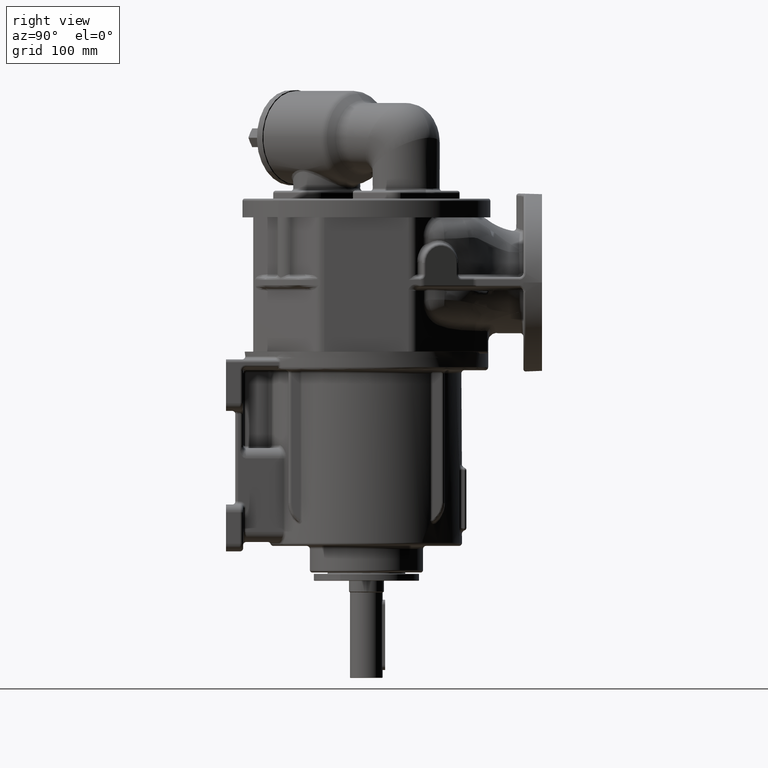
[diagram: clean part render]
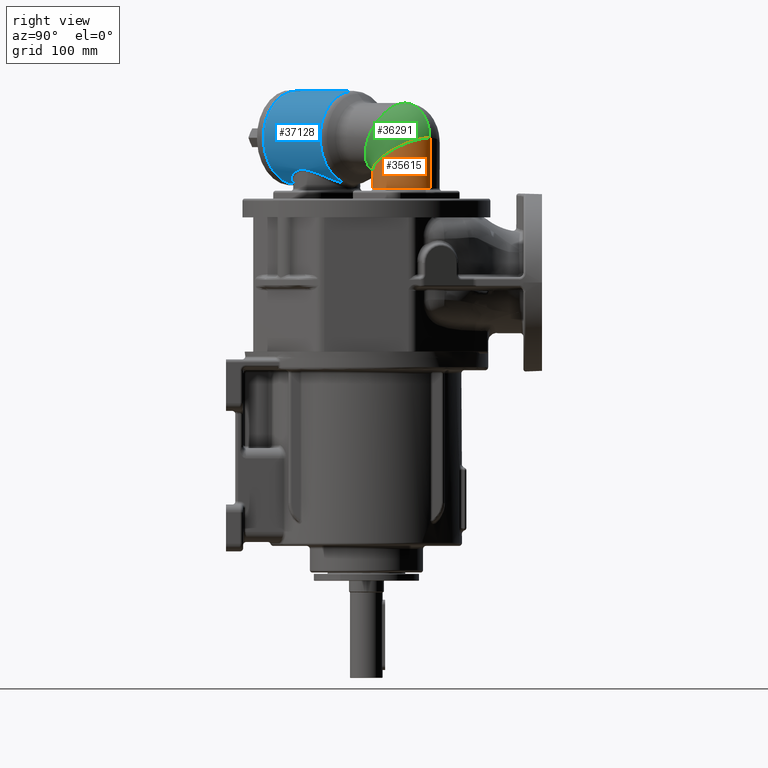
[diagram: same view with three faces highlighted in distinct colors, each labeled with its STEP entity id]
A machine part, right view with three faces highlighted in distinct colors.
Their STEP definitions:

[orange] entity #35615 — the highlighted cylindrical surface (edge-blend (fillet) strip) has radius 43 mm, axis along (0, 0, -1).
#3475=DIRECTION('',(0.E0,0.E0,1.E0));
#3476=VECTOR('',#3475,6.519052498069E1);
#3477=CARTESIAN_POINT('',(8.131727983645E1,8.131727983645E1,2.168094750193E2));
#3478=LINE('',#3477,#3476);
#3515=DIRECTION('',(0.E0,0.E0,1.E0));
#3516=VECTOR('',#3515,1.669052498069E1);
#3517=CARTESIAN_POINT('',(2.050609665441E1,2.050609665441E1,2.168094750193E2));
#3518=LINE('',#3517,#3516);
#3540=CARTESIAN_POINT('',(5.091168824543E1,5.091168824543E1,2.17E2));
#3541=DIRECTION('',(0.E0,0.E0,1.E0));
#3542=DIRECTION('',(-3.936225489088E-1,-9.192721517541E-1,0.E0));
#3543=AXIS2_PLACEMENT_3D('',#3540,#3541,#3542);
#3545=CARTESIAN_POINT('',(2.452575817094E1,1.695903453392E1,2.168094750193E2));
#3546=CARTESIAN_POINT('',(2.476507479982E1,1.677305228208E1,2.168094752076E2));
#3547=CARTESIAN_POINT('',(2.524853975369E1,1.640545261194E1,2.168112536497E2));
#3548=CARTESIAN_POINT('',(2.598768114403E1,1.586780860243E1,2.168191867084E2));
#3549=CARTESIAN_POINT('',(2.674160943718E1,1.534358706898E1,2.168320958332E2));
#3550=CARTESIAN_POINT('',(2.751085376324E1,1.483278872966E1,2.168494688967E2));
#3551=CARTESIAN_POINT('',(2.829601085553E1,1.433545527990E1,2.168705575728E2));
#3552=CARTESIAN_POINT('',(2.909614575203E1,1.385262163622E1,2.168943067079E2));
#3553=CARTESIAN_POINT('',(2.990908709634E1,1.338591339627E1,2.169193573911E2));
#3554=CARTESIAN_POINT('',(3.073115320704E1,1.293752563750E1,2.169440617990E2));
#3555=CARTESIAN_POINT('',(3.155719823944E1,1.251001527129E1,2.169665457285E2));
#3556=CARTESIAN_POINT('',(3.238001517157E1,1.210637986539E1,2.169848210197E2));
#3557=CARTESIAN_POINT('',(3.319348023744E1,1.172846167018E1,2.169970123272E2));
#3558=CARTESIAN_POINT('',(3.372361756068E1,1.149530029400E1,2.170000009500E2));
#3559=CARTESIAN_POINT('',(3.398591864506E1,1.138298572632E1,2.17E2));
#3561=CARTESIAN_POINT('',(5.091168824543E1,5.091168824543E1,2.168094750193E2));
#3562=DIRECTION('',(0.E0,0.E0,1.E0));
#3563=DIRECTION('',(-7.071067811865E-1,-7.071067811865E-1,0.E0));
#3564=AXIS2_PLACEMENT_3D('',#3561,#3562,#3563);
#3566=CARTESIAN_POINT('',(8.131727983645E1,8.131727983645E1,2.82E2));
#3567=CARTESIAN_POINT('',(8.231230049448E1,8.032225917843E1,2.82E2));
#3568=CARTESIAN_POINT('',(8.420457561934E1,7.823445523306E1,2.819220279288E2));
#3569=CARTESIAN_POINT('',(8.672236103078E1,7.483961470347E1,2.815722799795E2));
#3570=CARTESIAN_POINT('',(8.889526970420E1,7.121433554473E1,2.809931104514E2));
#3571=CARTESIAN_POINT('',(9.070237582687E1,6.739353069132E1,2.801900970636E2));
#3572=CARTESIAN_POINT('',(9.212627584882E1,6.341399671277E1,2.791709732742E2));
#3573=CARTESIAN_POINT('',(9.315325686934E1,5.931405866185E1,2.779455538021E2));
#3574=CARTESIAN_POINT('',(9.377342849044E1,5.513320119259E1,2.765256401070E2));
#3575=CARTESIAN_POINT('',(9.398081812291E1,5.091168824541E1,2.749249067338E2));
#3576=CARTESIAN_POINT('',(9.377342849053E1,4.669017529837E1,2.731587696200E2));
#3577=CARTESIAN_POINT('',(9.315325686901E1,4.250931782869E1,2.712442376315E2));
#3578=CARTESIAN_POINT('',(9.212627585005E1,3.840937977933E1,2.691997487579E2));
#3579=CARTESIAN_POINT('',(9.070237582228E1,3.442984579495E1,2.670449925447E2));
#3580=CARTESIAN_POINT('',(8.889526972134E1,3.060904096327E1,2.648007204721E2));
#3581=CARTESIAN_POINT('',(8.672236096684E1,2.698376172347E1,2.624885461071E2));
#3582=CARTESIAN_POINT('',(8.420457585794E1,2.358892149641E1,2.601307369527E2));
#3583=CARTESIAN_POINT('',(8.136616204158E1,2.045721444928E1,2.5775E2));
#3584=CARTESIAN_POINT('',(7.823445499446E1,1.761880063292E1,2.553692630473E2));
#3585=CARTESIAN_POINT('',(7.483961476740E1,1.510101552402E1,2.530114538929E2));
#3586=CARTESIAN_POINT('',(7.121433552759E1,1.292810676953E1,2.506992795278E2));
#3587=CARTESIAN_POINT('',(6.739353069591E1,1.112100066858E1,2.484550074552E2));
#3588=CARTESIAN_POINT('',(6.341399671153E1,9.697100640809E0,2.463002512420E2));
#3589=CARTESIAN_POINT('',(5.931405866218E1,8.670119621851E0,2.442557623684E2));
#3590=CARTESIAN_POINT('',(5.513320119249E1,8.049948000337E0,2.423412303799E2));
#3591=CARTESIAN_POINT('',(5.091168824545E1,7.842558367957E0,2.405750932661E2));
#3592=CARTESIAN_POINT('',(4.669017529827E1,8.049948000420E0,2.389743598929E2));
#3593=CARTESIAN_POINT('',(4.250931782901E1,8.670119621524E0,2.375544461978E2));
#3594=CARTESIAN_POINT('',(3.840937977809E1,9.697100642040E0,2.363290267258E2));
#3595=CARTESIAN_POINT('',(3.442984579954E1,1.112100066399E1,2.353099029363E2));
#3596=CARTESIAN_POINT('',(3.060904094613E1,1.292810678666E1,2.345068895485E2));
#3597=CARTESIAN_POINT('',(2.698376178740E1,1.510101546009E1,2.339277200204E2));
#3598=CARTESIAN_POINT('',(2.358892125781E1,1.761880087152E1,2.335779720711E2));
#3599=CARTESIAN_POINT('',(2.150111731244E1,1.951107599638E1,2.335E2));
#3600=CARTESIAN_POINT('',(2.050609665441E1,2.050609665441E1,2.335E2));
#3602=CARTESIAN_POINT('',(5.091168824543E1,5.091168824543E1,2.168094750193E2));
#3603=DIRECTION('',(0.E0,0.E0,1.E0));
#3604=DIRECTION('',(7.895965979528E-1,6.136262808105E-1,0.E0));
#3605=AXIS2_PLACEMENT_3D('',#3602,#3603,#3604);
#3607=CARTESIAN_POINT('',(9.044039076466E1,6.783745784585E1,2.17E2));
#3608=CARTESIAN_POINT('',(9.032807625390E1,6.809975879790E1,2.170000009508E2));
#3609=CARTESIAN_POINT('',(9.009491494983E1,6.862989596814E1,2.169970123312E2));
#3610=CARTESIAN_POINT('',(8.971699665092E1,6.944336127151E1,2.169848210219E2));
#3611=CARTESIAN_POINT('',(8.931336110865E1,7.026617847663E1,2.169665457228E2));
#3612=CARTESIAN_POINT('',(8.888585059599E1,7.109222377111E1,2.169440617839E2));
#3613=CARTESIAN_POINT('',(8.843746277517E1,7.191428996702E1,2.169193573756E2));
#3614=CARTESIAN_POINT('',(8.797075443174E1,7.272723145985E1,2.168943066867E2));
#3615=CARTESIAN_POINT('',(8.748792072980E1,7.352736641244E1,2.168705575489E2));
#3616=CARTESIAN_POINT('',(8.699058734082E1,7.431252337490E1,2.168494688794E2));
#3617=CARTESIAN_POINT('',(8.647978897722E1,7.508176770764E1,2.168320958234E2));
#3618=CARTESIAN_POINT('',(8.595556754471E1,7.583569582572E1,2.168191867041E2));
#3619=CARTESIAN_POINT('',(8.541792375964E1,7.657483689380E1,2.168112536418E2));
#3620=CARTESIAN_POINT('',(8.505032417248E1,7.705830173748E1,2.168094752142E2));
#3621=CARTESIAN_POINT('',(8.486434195692E1,7.729761831991E1,2.168094750193E2));
#3641=CARTESIAN_POINT('',(8.131727983645E1,8.131727983645E1,2.82E2));
#3661=CARTESIAN_POINT('',(2.050609665441E1,2.050609665441E1,2.335E2));
#26789=VERTEX_POINT('',#3641);
#26791=VERTEX_POINT('',#3661);
#26812=CARTESIAN_POINT('',(3.398591864235E1,1.138298572001E1,2.17E2));
#26813=CARTESIAN_POINT('',(9.044039077086E1,6.783745784851E1,2.17E2));
#26814=VERTEX_POINT('',#26812);
#26815=VERTEX_POINT('',#26813);
#26904=CARTESIAN_POINT('',(2.050609665441E1,2.050609665441E1,2.168094750193E2));
#26905=VERTEX_POINT('',#26904);
#26906=CARTESIAN_POINT('',(8.131727983645E1,8.131727983645E1,2.168094750193E2));
#26907=VERTEX_POINT('',#26906);
#26973=CARTESIAN_POINT('',(2.452575817058E1,1.695903453346E1,2.168094750193E2));
#26974=VERTEX_POINT('',#26973);
#26977=VERTEX_POINT('',#3621);
#35599=CARTESIAN_POINT('',(5.091168824543E1,5.091168824543E1,1.99E2));
#35600=DIRECTION('',(0.E0,0.E0,-1.E0));
#35601=DIRECTION('',(-7.071067811865E-1,-7.071067811865E-1,0.E0));
#35602=AXIS2_PLACEMENT_3D('',#35599,#35600,#35601);
#35603=CYLINDRICAL_SURFACE('',#35602,4.3E1);
#35604=ORIENTED_EDGE('',*,*,#35379,.F.);
#35605=ORIENTED_EDGE('',*,*,#35442,.F.);
#35606=ORIENTED_EDGE('',*,*,#35512,.F.);
#35607=ORIENTED_EDGE('',*,*,#35592,.T.);
#35609=ORIENTED_EDGE('',*,*,#35608,.F.);
#35610=ORIENTED_EDGE('',*,*,#35588,.F.);
#35611=ORIENTED_EDGE('',*,*,#35241,.F.);
#35612=ORIENTED_EDGE('',*,*,#35306,.F.);
#35613=EDGE_LOOP('',(#35604,#35605,#35606,#35607,#35609,#35610,#35611,#35612));
#35614=FACE_OUTER_BOUND('',#35613,.F.);
#35615=ADVANCED_FACE('',(#35614),#35603,.T.);
#3544=CIRCLE('',#3543,4.3E1);
#3560=B_SPLINE_CURVE_WITH_KNOTS('',3,(#3545,#3546,#3547,#3548,#3549,#3550,#3551,
#3552,#3553,#3554,#3555,#3556,#3557,#3558,#3559),.UNSPECIFIED.,.F.,.F.,(4,1,1,1,
1,1,1,1,1,1,1,1,4),(0.E0,8.333333333333E-2,1.666666666667E-1,2.5E-1,
3.333333333333E-1,4.166666666667E-1,5.E-1,5.833333333333E-1,6.666666666667E-1,
7.5E-1,8.333333333333E-1,9.166666666667E-1,1.E0),.UNSPECIFIED.);
#3565=CIRCLE('',#3564,4.3E1);
#3601=B_SPLINE_CURVE_WITH_KNOTS('',3,(#3566,#3567,#3568,#3569,#3570,#3571,#3572,
#3573,#3574,#3575,#3576,#3577,#3578,#3579,#3580,#3581,#3582,#3583,#3584,#3585,
#3586,#3587,#3588,#3589,#3590,#3591,#3592,#3593,#3594,#3595,#3596,#3597,#3598,
#3599,#3600),.UNSPECIFIED.,.F.,.F.,(4,1,1,1,1,1,1,1,1,1,1,1,1,1,1,1,1,1,1,1,1,1,
1,1,1,1,1,1,1,1,1,1,4),(0.E0,3.125E-2,6.25E-2,9.375E-2,1.25E-1,1.5625E-1,
1.875E-1,2.1875E-1,2.5E-1,2.8125E-1,3.125E-1,3.4375E-1,3.75E-1,4.0625E-1,
4.375E-1,4.6875E-1,5.E-1,5.3125E-1,5.625E-1,5.9375E-1,6.25E-1,6.5625E-1,
6.875E-1,7.1875E-1,7.5E-1,7.8125E-1,8.125E-1,8.4375E-1,8.75E-1,9.0625E-1,
9.375E-1,9.6875E-1,1.E0),.UNSPECIFIED.);
#3606=CIRCLE('',#3605,4.3E1);
#3622=B_SPLINE_CURVE_WITH_KNOTS('',3,(#3607,#3608,#3609,#3610,#3611,#3612,#3613,
#3614,#3615,#3616,#3617,#3618,#3619,#3620,#3621),.UNSPECIFIED.,.F.,.F.,(4,1,1,1,
1,1,1,1,1,1,1,1,4),(0.E0,8.333333333333E-2,1.666666666667E-1,2.5E-1,
3.333333333333E-1,4.166666666667E-1,5.E-1,5.833333333333E-1,6.666666666667E-1,
7.5E-1,8.333333333333E-1,9.166666666667E-1,1.E0),.UNSPECIFIED.);
#35241=EDGE_CURVE('',#26977,#26907,#3606,.T.);
#35306=EDGE_CURVE('',#26815,#26977,#3622,.T.);
#35379=EDGE_CURVE('',#26814,#26815,#3544,.T.);
#35442=EDGE_CURVE('',#26974,#26814,#3560,.T.);
#35512=EDGE_CURVE('',#26905,#26974,#3565,.T.);
#35588=EDGE_CURVE('',#26907,#26789,#3478,.T.);
#35592=EDGE_CURVE('',#26905,#26791,#3518,.T.);
#35608=EDGE_CURVE('',#26789,#26791,#3601,.T.);

[blue] entity #37128 — the highlighted cylindrical surface (partial cylindrical patch) has radius 60 mm, axis along (-0.7071, -0.7071, 0).
#3806=DIRECTION('',(-7.071067811866E-1,-7.071067811865E-1,-1.407158833899E-10));
#3807=VECTOR('',#3806,8.E0);
#3808=CARTESIAN_POINT('',(-8.414570696120E1,-8.414570696120E1,
2.220000000011E2));
#3809=LINE('',#3808,#3807);
#3964=DIRECTION('',(-7.071067811865E-1,-7.071067811865E-1,1.081389138139E-9));
#3965=VECTOR('',#3964,1.085786437627E0);
#3966=CARTESIAN_POINT('',(-1.690990257670E1,-1.690990257670E1,2.22E2));
#3967=LINE('',#3966,#3965);
#3973=DIRECTION('',(-7.071067811865E-1,-7.071067811865E-1,0.E0));
#3974=VECTOR('',#3973,1.030857864376E2);
#3975=CARTESIAN_POINT('',(-1.690990257670E1,-1.690990257670E1,3.42E2));
#3976=LINE('',#3975,#3974);
#3977=CARTESIAN_POINT('',(-8.980256121069E1,-8.980256121069E1,2.82E2));
#3978=DIRECTION('',(-7.071067811865E-1,-7.071067811865E-1,0.E0));
#3979=DIRECTION('',(0.E0,0.E0,-1.E0));
#3980=AXIS2_PLACEMENT_3D('',#3977,#3978,#3979);
#3982=CARTESIAN_POINT('',(-1.690990257670E1,-1.690990257670E1,2.82E2));
#3983=DIRECTION('',(-7.071067811865E-1,-7.071067811865E-1,0.E0));
#3984=DIRECTION('',(0.E0,0.E0,-1.E0));
#3985=AXIS2_PLACEMENT_3D('',#3982,#3983,#3984);
#3987=CARTESIAN_POINT('',(-8.414570696120E1,-8.414570696120E1,
2.220000000011E2));
#3988=CARTESIAN_POINT('',(-8.394861227857E1,-8.434280153802E1,
2.220000000246E2));
#3989=CARTESIAN_POINT('',(-8.355031381315E1,-8.473312056880E1,
2.220038846335E2));
#3990=CARTESIAN_POINT('',(-8.294062126819E1,-8.530685860030E1,
2.220213862122E2));
#3991=CARTESIAN_POINT('',(-8.231879888574E1,-8.586868769392E1,
2.220505790770E2));
#3992=CARTESIAN_POINT('',(-8.168486106827E1,-8.641852605032E1,
2.220914819065E2));
#3993=CARTESIAN_POINT('',(-8.103864343256E1,-8.695641646092E1,
2.221441325431E2));
#3994=CARTESIAN_POINT('',(-8.038007018693E1,-8.748229371996E1,
2.222085729740E2));
#3995=CARTESIAN_POINT('',(-7.970903018885E1,-8.799609462761E1,
2.222848546366E2));
#3996=CARTESIAN_POINT('',(-7.902539696160E1,-8.849773761825E1,
2.223730382777E2));
#3997=CARTESIAN_POINT('',(-7.832904105500E1,-8.898711452905E1,
2.224731917295E2));
#3998=CARTESIAN_POINT('',(-7.761982356398E1,-8.946409670364E1,
2.225853902388E2));
#3999=CARTESIAN_POINT('',(-7.689759952716E1,-8.992853125796E1,
2.227097153719E2));
#4000=CARTESIAN_POINT('',(-7.616221913590E1,-9.038024062313E1,
2.228462541112E2));
#4001=CARTESIAN_POINT('',(-7.541352949270E1,-9.081902184626E1,
2.229950977769E2));
#4002=CARTESIAN_POINT('',(-7.465137632031E1,-9.124464676004E1,
2.231563409260E2));
#4003=CARTESIAN_POINT('',(-7.387560562813E1,-9.165686016235E1,
2.233300798595E2));
#4004=CARTESIAN_POINT('',(-7.308606590543E1,-9.205537927264E1,
2.235164110171E2));
#4005=CARTESIAN_POINT('',(-7.228261042238E1,-9.243989334299E1,
2.237154291873E2));
#4006=CARTESIAN_POINT('',(-7.146509970831E1,-9.281006372642E1,
2.239272255752E2));
#4007=CARTESIAN_POINT('',(-7.063340430065E1,-9.316552242165E1,
2.241518853237E2));
#4008=CARTESIAN_POINT('',(-6.978740784671E1,-9.350587199007E1,
2.243894849135E2));
#4009=CARTESIAN_POINT('',(-6.892701034967E1,-9.383068572239E1,
2.246400893157E2));
#4010=CARTESIAN_POINT('',(-6.805213233156E1,-9.413950776071E1,
2.249037486399E2));
#4011=CARTESIAN_POINT('',(-6.716271895421E1,-9.443185263738E1,
2.251804942779E2));
#4012=CARTESIAN_POINT('',(-6.625874464815E1,-9.470720612533E1,
2.254703348119E2));
#4013=CARTESIAN_POINT('',(-6.534021796570E1,-9.496502652729E1,
2.257732515914E2));
#4014=CARTESIAN_POINT('',(-6.440718869199E1,-9.520474548559E1,
2.260891931381E2));
#4015=CARTESIAN_POINT('',(-6.345975375338E1,-9.542576956687E1,
2.264180694761E2));
#4016=CARTESIAN_POINT('',(-6.249806415427E1,-9.562748306970E1,
2.267597459941E2));
#4017=CARTESIAN_POINT('',(-6.152233225681E1,-9.580925160514E1,
2.271140369208E2));
#4018=CARTESIAN_POINT('',(-6.053284339598E1,-9.597042504569E1,
2.274806966287E2));
#4019=CARTESIAN_POINT('',(-5.952996364977E1,-9.611034293487E1,
2.278594121100E2));
#4020=CARTESIAN_POINT('',(-5.851414940893E1,-9.622834112308E1,
2.282497947674E2));
#4021=CARTESIAN_POINT('',(-5.748595724244E1,-9.632375969526E1,
2.286513720451E2));
#4022=CARTESIAN_POINT('',(-5.644606053494E1,-9.639595055453E1,
2.290635758501E2));
#4023=CARTESIAN_POINT('',(-5.539525691918E1,-9.644428904422E1,
2.294857350792E2));
#4024=CARTESIAN_POINT('',(-5.433447793963E1,-9.646818673405E1,
2.299170677734E2));
#4025=CARTESIAN_POINT('',(-5.326479818482E1,-9.646710579661E1,
2.303566741922E2));
#4026=CARTESIAN_POINT('',(-5.218745222051E1,-9.644057333059E1,
2.308035266604E2));
#4027=CARTESIAN_POINT('',(-5.110383177595E1,-9.638819960455E1,
2.312564696403E2));
#4028=CARTESIAN_POINT('',(-5.001548593034E1,-9.630969612937E1,
2.317142202160E2));
#4029=CARTESIAN_POINT('',(-4.892411881463E1,-9.620489410760E1,
2.321753716409E2));
#4030=CARTESIAN_POINT('',(-4.783158746368E1,-9.607376053972E1,
2.326383977114E2));
#4031=CARTESIAN_POINT('',(-4.673987341076E1,-9.591641400830E1,
2.331016723011E2));
#4032=CARTESIAN_POINT('',(-4.565105743901E1,-9.573313653356E1,
2.335634898249E2));
#4033=CARTESIAN_POINT('',(-4.456729032077E1,-9.552438168660E1,
2.340220898323E2));
#4034=CARTESIAN_POINT('',(-4.349075330152E1,-9.529077327572E1,
2.344756861364E2));
#4035=CARTESIAN_POINT('',(-4.242360434906E1,-9.503309982909E1,
2.349225057698E2));
#4036=CARTESIAN_POINT('',(-4.136793295716E1,-9.475230225918E1,
2.353608240656E2));
#4037=CARTESIAN_POINT('',(-4.032571492455E1,-9.444945528308E1,
2.357889993629E2));
#4038=CARTESIAN_POINT('',(-3.929875771995E1,-9.412573561413E1,
2.362055079649E2));
#4039=CARTESIAN_POINT('',(-3.828866697324E1,-9.378239523876E1,
2.366089710884E2));
#4040=CARTESIAN_POINT('',(-3.729682115662E1,-9.342073057877E1,
2.369981742090E2));
#4041=CARTESIAN_POINT('',(-3.632435163968E1,-9.304204975367E1,
2.373720805678E2));
#4042=CARTESIAN_POINT('',(-3.537212429702E1,-9.264763527454E1,
2.377298387423E2));
#4043=CARTESIAN_POINT('',(-3.444075404637E1,-9.223872320483E1,
2.380707767127E2));
#4044=CARTESIAN_POINT('',(-3.353061549849E1,-9.181648036599E1,
2.383943933793E2));
#4045=CARTESIAN_POINT('',(-3.264185976571E1,-9.138198561341E1,
2.387003451114E2));
#4046=CARTESIAN_POINT('',(-3.177443354724E1,-9.093621405430E1,
2.389884292306E2));
#4047=CARTESIAN_POINT('',(-3.092811103081E1,-9.048003285700E1,
2.392585634094E2));
#4048=CARTESIAN_POINT('',(-3.010251923336E1,-9.001419667893E1,
2.395107664437E2));
#4049=CARTESIAN_POINT('',(-2.929716368604E1,-8.953934613636E1,
2.397451386449E2));
#4050=CARTESIAN_POINT('',(-2.851145437049E1,-8.905601010784E1,
2.399618429366E2));
#4051=CARTESIAN_POINT('',(-2.774472894769E1,-8.856461070127E1,
2.401610884562E2));
#4052=CARTESIAN_POINT('',(-2.699627272573E1,-8.806546797907E1,
2.403431154613E2));
#4053=CARTESIAN_POINT('',(-2.626533547510E1,-8.755880501541E1,
2.405081822338E2));
#4054=CARTESIAN_POINT('',(-2.555114701316E1,-8.704475393628E1,
2.406565533597E2));
#4055=CARTESIAN_POINT('',(-2.485292956583E1,-8.652336284524E1,
2.407884910351E2));
#4056=CARTESIAN_POINT('',(-2.416990848738E1,-8.599460188098E1,
2.409042471353E2));
#4057=CARTESIAN_POINT('',(-2.350132071114E1,-8.545836790394E1,
2.410040562337E2));
#4058=CARTESIAN_POINT('',(-2.284642177446E1,-8.491448958144E1,
2.410881303646E2));
#4059=CARTESIAN_POINT('',(-2.220449178148E1,-8.436273189779E1,
2.411566545922E2));
#4060=CARTESIAN_POINT('',(-2.157483960021E1,-8.380280158153E1,
2.412097851050E2));
#4061=CARTESIAN_POINT('',(-2.095680676716E1,-8.323434964795E1,
2.412476458474E2));
#4062=CARTESIAN_POINT('',(-2.034977101875E1,-8.265697453420E1,
2.412703263873E2));
#4063=CARTESIAN_POINT('',(-1.975314920201E1,-8.207022510006E1,
2.412778806759E2));
#4064=CARTESIAN_POINT('',(-1.916639993486E1,-8.147360337959E1,
2.412703263332E2));
#4065=CARTESIAN_POINT('',(-1.858902510759E1,-8.086656786536E1,
2.412476457533E2));
#4066=CARTESIAN_POINT('',(-1.802057345854E1,-8.024853528332E1,
2.412097849855E2));
#4067=CARTESIAN_POINT('',(-1.746064339202E1,-7.961888333228E1,
2.411566544583E2));
#4068=CARTESIAN_POINT('',(-1.690888595119E1,-7.897695357949E1,
2.410881302291E2));
#4069=CARTESIAN_POINT('',(-1.636500785092E1,-7.832205487552E1,
2.410040561067E2));
#4070=CARTESIAN_POINT('',(-1.582877407812E1,-7.765346732597E1,
2.409042470257E2));
#4071=CARTESIAN_POINT('',(-1.530001329789E1,-7.697044646482E1,
2.407884909510E2));
#4072=CARTESIAN_POINT('',(-1.477862236951E1,-7.627222922247E1,
2.406565533076E2));
#4073=CARTESIAN_POINT('',(-1.426457143112E1,-7.555804095107E1,
2.405081822188E2));
#4074=CARTESIAN_POINT('',(-1.375790858305E1,-7.482710386803E1,
2.403431154846E2));
#4075=CARTESIAN_POINT('',(-1.325876596189E1,-7.407864780476E1,
2.401610885213E2));
#4076=CARTESIAN_POINT('',(-1.276736662244E1,-7.331192250035E1,
2.399618430379E2));
#4077=CARTESIAN_POINT('',(-1.228403061336E1,-7.252621323451E1,
2.397451387667E2));
#4078=CARTESIAN_POINT('',(-1.180918005841E1,-7.172085768494E1,
2.395107665713E2));
#4079=CARTESIAN_POINT('',(-1.134334387788E1,-7.089526590219E1,
2.392585635475E2));
#4080=CARTESIAN_POINT('',(-1.088716267344E1,-7.004894339378E1,
2.389884293773E2));
#4081=CARTESIAN_POINT('',(-1.044139108954E1,-6.918151714941E1,
2.387003452553E2));
#4082=CARTESIAN_POINT('',(-1.000689629452E1,-6.829276134989E1,
2.383943935048E2));
#4083=CARTESIAN_POINT('',(-9.584653402656E0,-6.738262270458E1,
2.380707768068E2));
#4084=CARTESIAN_POINT('',(-9.175741271214E0,-6.645125232534E1,
2.377298387916E2));
#4085=CARTESIAN_POINT('',(-8.781326725008E0,-6.549902482519E1,
2.373720805587E2));
#4086=CARTESIAN_POINT('',(-8.402645832001E0,-6.452655512567E1,
2.369981741284E2));
#4087=CARTESIAN_POINT('',(-8.040981105638E0,-6.353470910577E1,
2.366089709256E2));
#4088=CARTESIAN_POINT('',(-7.697640668633E0,-6.252461814110E1,
2.362055077118E2));
#4089=CARTESIAN_POINT('',(-7.373920945739E0,-6.149766070863E1,
2.357889990133E2));
#4090=CARTESIAN_POINT('',(-7.071073926771E0,-6.045544244392E1,
2.353608236155E2));
#4091=CARTESIAN_POINT('',(-6.790276325883E0,-5.939977082345E1,
2.349225052200E2));
#4092=CARTESIAN_POINT('',(-6.532602860474E0,-5.833262164966E1,
2.344756854897E2));
#4093=CARTESIAN_POINT('',(-6.298994443990E0,-5.725608442065E1,
2.340220890937E2));
#4094=CARTESIAN_POINT('',(-6.090239605250E0,-5.617231710797E1,
2.335634890011E2));
#4095=CARTESIAN_POINT('',(-5.906962150171E0,-5.508350095880E1,
2.331016714007E2));
#4096=CARTESIAN_POINT('',(-5.749615648864E0,-5.399178674772E1,
2.326383967445E2));
#4097=CARTESIAN_POINT('',(-5.618482120739E0,-5.289925525852E1,
2.321753706176E2));
#4098=CARTESIAN_POINT('',(-5.513680147594E0,-5.180788802470E1,
2.317142191466E2));
#4099=CARTESIAN_POINT('',(-5.435176727166E0,-5.071954208119E1,
2.312564685355E2));
#4100=CARTESIAN_POINT('',(-5.382803060645E0,-4.963592155773E1,
2.308035255306E2));
#4101=CARTESIAN_POINT('',(-5.356270657977E0,-4.855857553295E1,
2.303566730470E2));
#4102=CARTESIAN_POINT('',(-5.355189786881E0,-4.748889573545E1,
2.299170666219E2));
#4103=CARTESIAN_POINT('',(-5.379087543886E0,-4.642811672934E1,
2.294857339300E2));
#4104=CARTESIAN_POINT('',(-5.427426100786E0,-4.537731310205E1,
2.290635747110E2));
#4105=CARTESIAN_POINT('',(-5.499617026619E0,-4.433741639708E1,
2.286513709230E2));
#4106=CARTESIAN_POINT('',(-5.595035664169E0,-4.330922424631E1,
2.282497936685E2));
#4107=CARTESIAN_POINT('',(-5.713033915070E0,-4.229341003305E1,
2.278594110400E2));
#4108=CARTESIAN_POINT('',(-5.852951863994E0,-4.129053032532E1,
2.274806955925E2));
#4109=CARTESIAN_POINT('',(-6.014125360865E0,-4.030104151304E1,
2.271140359225E2));
#4110=CARTESIAN_POINT('',(-6.195893948871E0,-3.932530967348E1,
2.267597450374E2));
#4111=CARTESIAN_POINT('',(-6.397607499538E0,-3.836362014055E1,
2.264180685640E2));
#4112=CARTESIAN_POINT('',(-6.618631624049E0,-3.741618527551E1,
2.260891922729E2));
#4113=CARTESIAN_POINT('',(-6.858350620632E0,-3.648315608215E1,
2.257732507749E2));
#4114=CARTESIAN_POINT('',(-7.116171055683E0,-3.556462948624E1,
2.254703340456E2));
#4115=CARTESIAN_POINT('',(-7.391524570994E0,-3.466065527197E1,
2.251804935626E2));
#4116=CARTESIAN_POINT('',(-7.683869469658E0,-3.377124199099E1,
2.249037479760E2));
#4117=CARTESIAN_POINT('',(-7.992691524333E0,-3.289636407336E1,
2.246400887031E2));
#4118=CARTESIAN_POINT('',(-8.317505267154E0,-3.203596668042E1,
2.243894843519E2));
#4119=CARTESIAN_POINT('',(-8.657854840010E0,-3.118997033338E1,
2.241518848124E2));
#4120=CARTESIAN_POINT('',(-9.013313534135E0,-3.035827503501E1,
2.239272251130E2));
#4121=CARTESIAN_POINT('',(-9.383483910665E0,-2.954076443213E1,
2.237154287729E2));
#4122=CARTESIAN_POINT('',(-9.767997968153E0,-2.873730906177E1,
2.235164106488E2));
#4123=CARTESIAN_POINT('',(-1.016651705956E1,-2.794776945273E1,
2.233300795356E2));
#4124=CARTESIAN_POINT('',(-1.057873043761E1,-2.717199887484E1,
2.231563406441E2));
#4125=CARTESIAN_POINT('',(-1.100435532152E1,-2.640984581690E1,
2.229950975349E2));
#4126=CARTESIAN_POINT('',(-1.144313650902E1,-2.566115628793E1,
2.228462539064E2));
#4127=CARTESIAN_POINT('',(-1.189484583295E1,-2.492577601029E1,
2.227097152017E2));
#4128=CARTESIAN_POINT('',(-1.235928034094E1,-2.420355208645E1,
2.225853901004E2));
#4129=CARTESIAN_POINT('',(-1.283626246410E1,-2.349433470700E1,
2.224731916199E2));
#4130=CARTESIAN_POINT('',(-1.332563931837E1,-2.279797891008E1,
2.223730381937E2));
#4131=CARTESIAN_POINT('',(-1.382728224567E1,-2.211434579297E1,
2.222848545753E2));
#4132=CARTESIAN_POINT('',(-1.434108309035E1,-2.144330589674E1,
2.222085729314E2));
#4133=CARTESIAN_POINT('',(-1.486696027439E1,-2.078473276030E1,
2.221441325170E2));
#4134=CARTESIAN_POINT('',(-1.540485060091E1,-2.013851523490E1,
2.220914818932E2));
#4135=CARTESIAN_POINT('',(-1.595468892485E1,-1.950457746081E1,
2.220505790691E2));
#4136=CARTESIAN_POINT('',(-1.651651798058E1,-1.888275512568E1,
2.220213862088E2));
#4137=CARTESIAN_POINT('',(-1.709025596322E1,-1.827306263614E1,
2.220038846330E2));
#4138=CARTESIAN_POINT('',(-1.748057496600E1,-1.787476419868E1,
2.220000000246E2));
#4139=CARTESIAN_POINT('',(-1.767766952966E1,-1.767766952966E1,
2.220000000012E2));
#26797=CARTESIAN_POINT('',(-1.690990257670E1,-1.690990257670E1,2.22E2));
#26799=VERTEX_POINT('',#26797);
#26805=CARTESIAN_POINT('',(-1.690990257670E1,-1.690990257670E1,3.42E2));
#26807=VERTEX_POINT('',#26805);
#26916=CARTESIAN_POINT('',(-1.767766952966E1,-1.767766952966E1,
2.220000000012E2));
#26917=VERTEX_POINT('',#26916);
#26934=CARTESIAN_POINT('',(-8.980256121069E1,-8.980256121069E1,2.22E2));
#26935=CARTESIAN_POINT('',(-8.980256121069E1,-8.980256121069E1,3.42E2));
#26936=VERTEX_POINT('',#26934);
#26937=VERTEX_POINT('',#26935);
#26938=VERTEX_POINT('',#3987);
#37114=CARTESIAN_POINT('',(2.315774708386E1,2.315774708386E1,2.82E2));
#37115=DIRECTION('',(-7.071067811865E-1,-7.071067811865E-1,0.E0));
#37116=DIRECTION('',(0.E0,0.E0,-1.E0));
#37117=AXIS2_PLACEMENT_3D('',#37114,#37115,#37116);
#37118=CYLINDRICAL_SURFACE('',#37117,6.E1);
#37119=ORIENTED_EDGE('',*,*,#37102,.T.);
#37120=ORIENTED_EDGE('',*,*,#37092,.F.);
#37121=ORIENTED_EDGE('',*,*,#37057,.F.);
#37122=ORIENTED_EDGE('',*,*,#37089,.T.);
#37124=ORIENTED_EDGE('',*,*,#37123,.F.);
#37125=ORIENTED_EDGE('',*,*,#37085,.T.);
#37126=EDGE_LOOP('',(#37119,#37120,#37121,#37122,#37124,#37125));
#37127=FACE_OUTER_BOUND('',#37126,.F.);
#37128=ADVANCED_FACE('',(#37127),#37118,.T.);
#3981=CIRCLE('',#3980,6.E1);
#3986=CIRCLE('',#3985,6.E1);
#4140=B_SPLINE_CURVE_WITH_KNOTS('',3,(#3987,#3988,#3989,#3990,#3991,#3992,#3993,
#3994,#3995,#3996,#3997,#3998,#3999,#4000,#4001,#4002,#4003,#4004,#4005,#4006,
#4007,#4008,#4009,#4010,#4011,#4012,#4013,#4014,#4015,#4016,#4017,#4018,#4019,
#4020,#4021,#4022,#4023,#4024,#4025,#4026,#4027,#4028,#4029,#4030,#4031,#4032,
#4033,#4034,#4035,#4036,#4037,#4038,#4039,#4040,#4041,#4042,#4043,#4044,#4045,
#4046,#4047,#4048,#4049,#4050,#4051,#4052,#4053,#4054,#4055,#4056,#4057,#4058,
#4059,#4060,#4061,#4062,#4063,#4064,#4065,#4066,#4067,#4068,#4069,#4070,#4071,
#4072,#4073,#4074,#4075,#4076,#4077,#4078,#4079,#4080,#4081,#4082,#4083,#4084,
#4085,#4086,#4087,#4088,#4089,#4090,#4091,#4092,#4093,#4094,#4095,#4096,#4097,
#4098,#4099,#4100,#4101,#4102,#4103,#4104,#4105,#4106,#4107,#4108,#4109,#4110,
#4111,#4112,#4113,#4114,#4115,#4116,#4117,#4118,#4119,#4120,#4121,#4122,#4123,
#4124,#4125,#4126,#4127,#4128,#4129,#4130,#4131,#4132,#4133,#4134,#4135,#4136,
#4137,#4138,#4139),.UNSPECIFIED.,.F.,.F.,(4,1,1,1,1,1,1,1,1,1,1,1,1,1,1,1,1,1,1,
1,1,1,1,1,1,1,1,1,1,1,1,1,1,1,1,1,1,1,1,1,1,1,1,1,1,1,1,1,1,1,1,1,1,1,1,1,1,1,1,
1,1,1,1,1,1,1,1,1,1,1,1,1,1,1,1,1,1,1,1,1,1,1,1,1,1,1,1,1,1,1,1,1,1,1,1,1,1,1,1,
1,1,1,1,1,1,1,1,1,1,1,1,1,1,1,1,1,1,1,1,1,1,1,1,1,1,1,1,1,1,1,1,1,1,1,1,1,1,1,1,
1,1,1,1,1,1,1,1,1,1,1,4),(0.E0,6.666666666667E-3,1.333333333333E-2,2.E-2,
2.666666666667E-2,3.333333333333E-2,4.E-2,4.666666666667E-2,5.333333333333E-2,
6.E-2,6.666666666667E-2,7.333333333333E-2,8.E-2,8.666666666667E-2,
9.333333333333E-2,1.E-1,1.066666666667E-1,1.133333333333E-1,1.2E-1,
1.266666666667E-1,1.333333333333E-1,1.4E-1,1.466666666667E-1,1.533333333333E-1,
1.6E-1,1.666666666667E-1,1.733333333333E-1,1.8E-1,1.866666666667E-1,
1.933333333333E-1,2.E-1,2.066666666667E-1,2.133333333333E-1,2.2E-1,
2.266666666667E-1,2.333333333333E-1,2.4E-1,2.466666666667E-1,2.533333333333E-1,
2.6E-1,2.666666666667E-1,2.733333333333E-1,2.8E-1,2.866666666667E-1,
2.933333333333E-1,3.E-1,3.066666666667E-1,3.133333333333E-1,3.2E-1,
3.266666666667E-1,3.333333333333E-1,3.4E-1,3.466666666667E-1,3.533333333333E-1,
3.6E-1,3.666666666667E-1,3.733333333333E-1,3.8E-1,3.866666666667E-1,
3.933333333333E-1,4.E-1,4.066666666667E-1,4.133333333333E-1,4.2E-1,
4.266666666667E-1,4.333333333333E-1,4.4E-1,4.466666666667E-1,4.533333333333E-1,
4.6E-1,4.666666666667E-1,4.733333333333E-1,4.8E-1,4.866666666667E-1,
4.933333333333E-1,5.E-1,5.066666666667E-1,5.133333333333E-1,5.2E-1,
5.266666666667E-1,5.333333333333E-1,5.4E-1,5.466666666667E-1,5.533333333333E-1,
5.6E-1,5.666666666667E-1,5.733333333333E-1,5.8E-1,5.866666666667E-1,
5.933333333333E-1,6.E-1,6.066666666667E-1,6.133333333333E-1,6.2E-1,
6.266666666667E-1,6.333333333333E-1,6.4E-1,6.466666666667E-1,6.533333333333E-1,
6.6E-1,6.666666666667E-1,6.733333333333E-1,6.8E-1,6.866666666667E-1,
6.933333333333E-1,7.E-1,7.066666666667E-1,7.133333333333E-1,7.2E-1,
7.266666666667E-1,7.333333333333E-1,7.4E-1,7.466666666667E-1,7.533333333333E-1,
7.6E-1,7.666666666667E-1,7.733333333333E-1,7.8E-1,7.866666666667E-1,
7.933333333333E-1,8.E-1,8.066666666667E-1,8.133333333333E-1,8.2E-1,
8.266666666667E-1,8.333333333333E-1,8.4E-1,8.466666666667E-1,8.533333333333E-1,
8.6E-1,8.666666666667E-1,8.733333333333E-1,8.8E-1,8.866666666667E-1,
8.933333333333E-1,9.E-1,9.066666666667E-1,9.133333333333E-1,9.2E-1,
9.266666666667E-1,9.333333333333E-1,9.4E-1,9.466666666667E-1,9.533333333333E-1,
9.6E-1,9.666666666667E-1,9.733333333333E-1,9.8E-1,9.866666666667E-1,
9.933333333333E-1,1.E0),.UNSPECIFIED.);
#37057=EDGE_CURVE('',#26799,#26807,#3986,.T.);
#37085=EDGE_CURVE('',#26938,#26936,#3809,.T.);
#37089=EDGE_CURVE('',#26799,#26917,#3967,.T.);
#37092=EDGE_CURVE('',#26807,#26937,#3976,.T.);
#37102=EDGE_CURVE('',#26936,#26937,#3981,.T.);
#37123=EDGE_CURVE('',#26938,#26917,#4140,.T.);

[green] entity #36291 — the highlighted face is a freeform B-spline surface patch.
#3566=CARTESIAN_POINT('',(8.131727983645E1,8.131727983645E1,2.82E2));
#3567=CARTESIAN_POINT('',(8.231230049448E1,8.032225917843E1,2.82E2));
#3568=CARTESIAN_POINT('',(8.420457561934E1,7.823445523306E1,2.819220279288E2));
#3569=CARTESIAN_POINT('',(8.672236103078E1,7.483961470347E1,2.815722799795E2));
#3570=CARTESIAN_POINT('',(8.889526970420E1,7.121433554473E1,2.809931104514E2));
#3571=CARTESIAN_POINT('',(9.070237582687E1,6.739353069132E1,2.801900970636E2));
#3572=CARTESIAN_POINT('',(9.212627584882E1,6.341399671277E1,2.791709732742E2));
#3573=CARTESIAN_POINT('',(9.315325686934E1,5.931405866185E1,2.779455538021E2));
#3574=CARTESIAN_POINT('',(9.377342849044E1,5.513320119259E1,2.765256401070E2));
#3575=CARTESIAN_POINT('',(9.398081812291E1,5.091168824541E1,2.749249067338E2));
#3576=CARTESIAN_POINT('',(9.377342849053E1,4.669017529837E1,2.731587696200E2));
#3577=CARTESIAN_POINT('',(9.315325686901E1,4.250931782869E1,2.712442376315E2));
#3578=CARTESIAN_POINT('',(9.212627585005E1,3.840937977933E1,2.691997487579E2));
#3579=CARTESIAN_POINT('',(9.070237582228E1,3.442984579495E1,2.670449925447E2));
#3580=CARTESIAN_POINT('',(8.889526972134E1,3.060904096327E1,2.648007204721E2));
#3581=CARTESIAN_POINT('',(8.672236096684E1,2.698376172347E1,2.624885461071E2));
#3582=CARTESIAN_POINT('',(8.420457585794E1,2.358892149641E1,2.601307369527E2));
#3583=CARTESIAN_POINT('',(8.136616204158E1,2.045721444928E1,2.5775E2));
#3584=CARTESIAN_POINT('',(7.823445499446E1,1.761880063292E1,2.553692630473E2));
#3585=CARTESIAN_POINT('',(7.483961476740E1,1.510101552402E1,2.530114538929E2));
#3586=CARTESIAN_POINT('',(7.121433552759E1,1.292810676953E1,2.506992795278E2));
#3587=CARTESIAN_POINT('',(6.739353069591E1,1.112100066858E1,2.484550074552E2));
#3588=CARTESIAN_POINT('',(6.341399671153E1,9.697100640809E0,2.463002512420E2));
#3589=CARTESIAN_POINT('',(5.931405866218E1,8.670119621851E0,2.442557623684E2));
#3590=CARTESIAN_POINT('',(5.513320119249E1,8.049948000337E0,2.423412303799E2));
#3591=CARTESIAN_POINT('',(5.091168824545E1,7.842558367957E0,2.405750932661E2));
#3592=CARTESIAN_POINT('',(4.669017529827E1,8.049948000420E0,2.389743598929E2));
#3593=CARTESIAN_POINT('',(4.250931782901E1,8.670119621524E0,2.375544461978E2));
#3594=CARTESIAN_POINT('',(3.840937977809E1,9.697100642040E0,2.363290267258E2));
#3595=CARTESIAN_POINT('',(3.442984579954E1,1.112100066399E1,2.353099029363E2));
#3596=CARTESIAN_POINT('',(3.060904094613E1,1.292810678666E1,2.345068895485E2));
#3597=CARTESIAN_POINT('',(2.698376178740E1,1.510101546009E1,2.339277200204E2));
#3598=CARTESIAN_POINT('',(2.358892125781E1,1.761880087152E1,2.335779720711E2));
#3599=CARTESIAN_POINT('',(2.150111731244E1,1.951107599638E1,2.335E2));
#3600=CARTESIAN_POINT('',(2.050609665441E1,2.050609665441E1,2.335E2));
#3623=CARTESIAN_POINT('',(4.985102807365E1,4.985102807365E1,3.265E2));
#3624=CARTESIAN_POINT('',(5.088075875463E1,5.088075875463E1,3.265E2));
#3625=CARTESIAN_POINT('',(5.294021827353E1,5.294021827353E1,3.263569172304E2));
#3626=CARTESIAN_POINT('',(5.599965844069E1,5.599965844069E1,3.257151117151E2));
#3627=CARTESIAN_POINT('',(5.899988353989E1,5.899988353989E1,3.246523057769E2));
#3628=CARTESIAN_POINT('',(6.191200026588E1,6.191200026588E1,3.231787348179E2));
#3629=CARTESIAN_POINT('',(6.470796320801E1,6.470796320801E1,3.213085901320E2));
#3630=CARTESIAN_POINT('',(6.736084575078E1,6.736084575078E1,3.190598822350E2));
#3631=CARTESIAN_POINT('',(6.984509917545E1,6.984509917545E1,3.164542674129E2));
#3632=CARTESIAN_POINT('',(7.213679876608E1,7.213679876608E1,3.135168391612E2));
#3633=CARTESIAN_POINT('',(7.421387420215E1,7.421387420215E1,3.102758865192E2));
#3634=CARTESIAN_POINT('',(7.605632211196E1,7.605632211196E1,3.067626216337E2));
#3635=CARTESIAN_POINT('',(7.764639871490E1,7.764639871490E1,3.030108791623E2));
#3636=CARTESIAN_POINT('',(7.896879070407E1,7.896879070407E1,2.990567904497E2));
#3637=CARTESIAN_POINT('',(8.001076272172E1,8.001076272172E1,2.949384354806E2));
#3638=CARTESIAN_POINT('',(8.076228000773E1,8.076228000772E1,2.906954764551E2));
#3639=CARTESIAN_POINT('',(8.121610503979E1,8.121610503979E1,2.863687746774E2));
#3640=CARTESIAN_POINT('',(8.131727983645E1,8.131727983645E1,2.834562590946E2));
#3641=CARTESIAN_POINT('',(8.131727983645E1,8.131727983645E1,2.82E2));
#3643=CARTESIAN_POINT('',(1.767766952966E1,1.767766952966E1,2.375E2));
#3644=CARTESIAN_POINT('',(1.777022959088E1,1.777022959087E1,2.375E2));
#3645=CARTESIAN_POINT('',(1.795534838338E1,1.795534838338E1,2.374871076123E2));
#3646=CARTESIAN_POINT('',(1.823035736049E1,1.823035736049E1,2.374294634535E2));
#3647=CARTESIAN_POINT('',(1.850003190404E1,1.850003190404E1,2.373338853033E2));
#3648=CARTESIAN_POINT('',(1.876180610517E1,1.876180610517E1,2.372014736369E2));
#3649=CARTESIAN_POINT('',(1.901311405501E1,1.901311405501E1,2.370333289293E2));
#3650=CARTESIAN_POINT('',(1.925159180463E1,1.925159180463E1,2.368312382622E2));
#3651=CARTESIAN_POINT('',(1.947487540509E1,1.947487540509E1,2.365969887173E2));
#3652=CARTESIAN_POINT('',(1.968089262999E1,1.968089262999E1,2.363329852769E2));
#3653=CARTESIAN_POINT('',(1.986757125292E1,1.986757125292E1,2.360416329234E2));
#3654=CARTESIAN_POINT('',(2.003321069459E1,2.003321069459E1,2.357258622274E2));
#3655=CARTESIAN_POINT('',(2.017611037572E1,2.017611037572E1,2.353886037595E2));
#3656=CARTESIAN_POINT('',(2.029500663871E1,2.029500663871E1,2.350332006485E2));
#3657=CARTESIAN_POINT('',(2.038863582595E1,2.038863582595E1,2.346629960230E2));
#3658=CARTESIAN_POINT('',(2.045621978406E1,2.045621978406E1,2.342816186261E2));
#3659=CARTESIAN_POINT('',(2.049698035964E1,2.049698035964E1,2.338926972009E2));
#3660=CARTESIAN_POINT('',(2.050609665441E1,2.050609665441E1,2.336308996939E2));
#3661=CARTESIAN_POINT('',(2.050609665441E1,2.050609665441E1,2.335E2));
#3707=CARTESIAN_POINT('',(4.985102807365E1,4.985102807365E1,3.265E2));
#3708=CARTESIAN_POINT('',(5.088075875463E1,4.882129739267E1,3.265E2));
#3709=CARTESIAN_POINT('',(5.288849407971E1,4.671011367995E1,3.263569172304E2));
#3710=CARTESIAN_POINT('',(5.571592257318E1,4.341866183910E1,3.257151117151E2));
#3711=CARTESIAN_POINT('',(5.833194501493E1,4.003423408245E1,3.246523057769E2));
#3712=CARTESIAN_POINT('',(6.071136818133E1,3.658942379687E1,3.231787348179E2));
#3713=CARTESIAN_POINT('',(6.283127679191E1,3.311740652321E1,3.213085901320E2));
#3714=CARTESIAN_POINT('',(6.467125500398E1,2.965161964971E1,3.190598822349E2));
#3715=CARTESIAN_POINT('',(6.621358281183E1,2.622544060824E1,3.164542674129E2));
#3716=CARTESIAN_POINT('',(6.744340675816E1,2.287186537331E1,3.135168391611E2));
#3717=CARTESIAN_POINT('',(6.834888296538E1,1.962319070838E1,3.102758865193E2));
#3718=CARTESIAN_POINT('',(6.892129120281E1,1.651070312619E1,3.067626216332E2));
#3719=CARTESIAN_POINT('',(6.915511886616E1,1.356437758367E1,3.030108791641E2));
#3720=CARTESIAN_POINT('',(6.904811406724E1,1.081258880640E1,2.990567904429E2));
#3721=CARTESIAN_POINT('',(6.860130732074E1,8.281838024593E0,2.949384355056E2));
#3722=CARTESIAN_POINT('',(6.781900161988E1,5.996497751728E0,2.906954763615E2));
#3723=CARTESIAN_POINT('',(6.670873099621E1,3.978577063926E0,2.863687750266E2));
#3724=CARTESIAN_POINT('',(6.528118796278E1,2.247509640517E0,2.82E2));
#3725=CARTESIAN_POINT('',(6.355012053937E1,8.199666070859E-1,2.776312249734E2));
#3726=CARTESIAN_POINT('',(6.153219985157E1,-2.903040165800E-1,
2.733045236385E2));
#3727=CARTESIAN_POINT('',(5.924685957870E1,-1.072609717439E0,2.690615644944E2));
#3728=CARTESIAN_POINT('',(5.671610879690E1,-1.519416463941E0,2.649432095571E2));
#3729=CARTESIAN_POINT('',(5.396432001963E1,-1.626421262867E0,2.609891208359E2));
#3730=CARTESIAN_POINT('',(5.101799447711E1,-1.392593599511E0,2.572373783668E2));
#3731=CARTESIAN_POINT('',(4.790550689492E1,-8.201853620820E-1,
2.537241134807E2));
#3732=CARTESIAN_POINT('',(4.465683222999E1,8.529084513404E-2,2.504831608389E2));
#3733=CARTESIAN_POINT('',(4.130325699506E1,1.315114791464E0,2.475457325871E2));
#3734=CARTESIAN_POINT('',(3.787707795358E1,2.857442599320E0,2.449401177651E2));
#3735=CARTESIAN_POINT('',(3.441129108009E1,4.697420811381E0,2.426914098680E2));
#3736=CARTESIAN_POINT('',(3.093927380642E1,6.817329421963E0,2.408212651821E2));
#3737=CARTESIAN_POINT('',(2.749446352085E1,9.196752588366E0,2.393476942231E2));
#3738=CARTESIAN_POINT('',(2.411003576420E1,1.181277503012E1,2.382848882849E2));
#3739=CARTESIAN_POINT('',(2.081858392334E1,1.464020352358E1,2.376430827696E2));
#3740=CARTESIAN_POINT('',(1.870740021064E1,1.664793884868E1,2.375E2));
#3741=CARTESIAN_POINT('',(1.767766952966E1,1.767766952966E1,2.375E2));
#26788=VERTEX_POINT('',#3623);
#26789=VERTEX_POINT('',#3641);
#26790=VERTEX_POINT('',#3643);
#26791=VERTEX_POINT('',#3661);
#35616=CARTESIAN_POINT('',(4.838830680384E1,5.051306424363E1,3.264711516381E2));
#35617=CARTESIAN_POINT('',(4.979753646615E1,4.915507422666E1,3.265374009137E2));
#35618=CARTESIAN_POINT('',(5.217888810569E1,4.670088153843E1,3.264270302394E2));
#35619=CARTESIAN_POINT('',(5.533550464694E1,4.303947961343E1,3.257119470028E2));
#35620=CARTESIAN_POINT('',(5.795641625319E1,3.966335103519E1,3.246500131086E2));
#35621=CARTESIAN_POINT('',(6.034143871664E1,3.622819616370E1,3.231780633251E2));
#35622=CARTESIAN_POINT('',(6.246804254846E1,3.276680653450E1,3.213102321010E2));
#35623=CARTESIAN_POINT('',(6.431609787841E1,2.931226853063E1,3.190643189544E2));
#35624=CARTESIAN_POINT('',(6.586806727218E1,2.589768718220E1,3.164616565339E2));
#35625=CARTESIAN_POINT('',(6.710913598938E1,2.255587282343E1,3.135269645012E2));
#35626=CARTESIAN_POINT('',(6.802738243536E1,1.931904061362E1,3.102881567067E2));
#35627=CARTESIAN_POINT('',(6.861388509353E1,1.621848302763E1,3.067761306251E2));
#35628=CARTESIAN_POINT('',(6.886285352205E1,1.328425980923E1,3.030244945396E2));
#35629=CARTESIAN_POINT('',(6.877169903398E1,1.054487231449E1,2.990692899486E2));
#35630=CARTESIAN_POINT('',(6.834109319639E1,8.026977177347E0,2.949486039343E2));
#35631=CARTESIAN_POINT('',(6.757501648974E1,5.755061359487E0,2.907023178905E2));
#35632=CARTESIAN_POINT('',(6.648067924414E1,3.751248198237E0,2.863715130561E2));
#35633=CARTESIAN_POINT('',(6.506857933415E1,2.034947542244E0,2.819982562898E2));
#35634=CARTESIAN_POINT('',(6.335226895044E1,6.228072356770E-1,
2.776250196772E2));
#35635=CARTESIAN_POINT('',(6.134839444349E1,-4.716418831005E-1,
2.732942674126E2));
#35636=CARTESIAN_POINT('',(5.907636398312E1,-1.237923353545E0,
2.690480587223E2));
#35637=CARTESIAN_POINT('',(5.655828003459E1,-1.668847841905E0,
2.649275198075E2));
#35638=CARTESIAN_POINT('',(5.381863223694E1,-1.760475576068E0,
2.609724740369E2));
#35639=CARTESIAN_POINT('',(5.088406842431E1,-1.512135674458E0,
2.572210099129E2));
#35640=CARTESIAN_POINT('',(4.778310023304E1,-9.263888843048E-1,
2.537091256111E2));
#35641=CARTESIAN_POINT('',(4.454581211372E1,-8.946098221131E-3,
2.504703894295E2));
#35642=CARTESIAN_POINT('',(4.120354573237E1,1.231403558426E0,2.475356651366E2));
#35643=CARTESIAN_POINT('',(3.778859116951E1,2.782903946936E0,2.449328588628E2));
#35644=CARTESIAN_POINT('',(3.433386196651E1,4.630908200500E0,2.426867158044E2));
#35645=CARTESIAN_POINT('',(3.087257856051E1,6.757993410051E0,2.408186247611E2));
#35646=CARTESIAN_POINT('',(2.743792833736E1,9.144043863181E0,2.393464515841E2));
#35647=CARTESIAN_POINT('',(2.406271735881E1,1.176637817138E1,2.382843792117E2));
#35648=CARTESIAN_POINT('',(2.040307144227E1,1.492419253948E1,2.375693348443E2));
#35649=CARTESIAN_POINT('',(1.794986702994E1,1.730559460085E1,2.374589139605E2));
#35650=CARTESIAN_POINT('',(1.659202086300E1,1.871406920432E1,2.375250576718E2));
#35651=CARTESIAN_POINT('',(4.955313816216E1,5.167567104946E1,3.264916889239E2));
#35652=CARTESIAN_POINT('',(5.095539678042E1,5.031428938476E1,3.265576030160E2));
#35653=CARTESIAN_POINT('',(5.332553706221E1,4.785037548664E1,3.264472697097E2));
#35654=CARTESIAN_POINT('',(5.646674837335E1,4.416702973089E1,3.257310855466E2));
#35655=CARTESIAN_POINT('',(5.907304171482E1,4.076604982639E1,3.246662912472E2));
#35656=CARTESIAN_POINT('',(6.144140371920E1,3.730205029204E1,3.231892102210E2));
#35657=CARTESIAN_POINT('',(6.354814232568E1,3.380896629020E1,3.213141473485E2));
#35658=CARTESIAN_POINT('',(6.537226093464E1,3.032092699872E1,3.190595380002E2));
#35659=CARTESIAN_POINT('',(6.689566241599E1,2.687184316361E1,3.164476914098E2));
#35660=CARTESIAN_POINT('',(6.810340237281E1,2.349507094303E1,3.135044554269E2));
#35661=CARTESIAN_POINT('',(6.898377804592E1,2.022305996437E1,3.102588768887E2));
#35662=CARTESIAN_POINT('',(6.952845825978E1,1.708707650177E1,3.067428037424E2));
#35663=CARTESIAN_POINT('',(6.973247384550E1,1.411691954178E1,3.029905288964E2));
#35664=CARTESIAN_POINT('',(6.959423660009E1,1.134070682876E1,2.990383664461E2));
#35665=CARTESIAN_POINT('',(6.911548763999E1,8.784626993598E0,2.949243842091E2));
#35666=CARTESIAN_POINT('',(6.830116998680E1,6.472824596345E0,2.906878031711E2));
#35667=CARTESIAN_POINT('',(6.715946361237E1,4.427081690373E0,2.863690451265E2));
#35668=CARTESIAN_POINT('',(6.570144982192E1,2.666883651408E0,2.820089762965E2));
#35669=CARTESIAN_POINT('',(6.394127134875E1,1.208950570183E0,2.776488679263E2));
#35670=CARTESIAN_POINT('',(6.189565124512E1,6.746883352040E-2,
2.733300068090E2));
#35671=CARTESIAN_POINT('',(5.958407876903E1,-7.464362928399E-1,
2.690932734303E2));
#35672=CARTESIAN_POINT('',(5.702837912965E1,-1.224541842728E0,
2.649789969052E2));
#35673=CARTESIAN_POINT('',(5.425269263260E1,-1.361822339369E0,
2.610265133817E2));
#35674=CARTESIAN_POINT('',(5.128322660271E1,-1.156535622059E0,
2.572738857789E2));
#35675=CARTESIAN_POINT('',(4.814807815991E1,-6.103271084269E-1,
2.537575144880E2));
#35676=CARTESIAN_POINT('',(4.487699543628E1,2.716724534300E-1,
2.505117734146E2));
#35677=CARTESIAN_POINT('',(4.150114336129E1,1.480863935128E0,2.475685808516E2));
#35678=CARTESIAN_POINT('',(3.805281783875E1,3.005210582951E0,2.449570035325E2));
#35679=CARTESIAN_POINT('',(3.456516470246E1,4.829429866833E0,2.427028435292E2));
#35680=CARTESIAN_POINT('',(3.107186122656E1,6.935194544455E0,2.408283024939E2));
#35681=CARTESIAN_POINT('',(2.760683404411E1,9.301480110058E0,2.393516859648E2));
#35682=CARTESIAN_POINT('',(2.420399192165E1,1.190490083998E1,2.382872006996E2));
#35683=CARTESIAN_POINT('',(2.051854518262E1,1.504244550741E1,2.375712633384E2));
#35684=CARTESIAN_POINT('',(1.805395829677E1,1.741104467077E1,2.374608908651E2));
#35685=CARTESIAN_POINT('',(1.669352735903E1,1.881335653072E1,2.375266893570E2));
#35686=CARTESIAN_POINT('',(5.175202774614E1,5.387071653592E1,3.263577522739E2));
#35687=CARTESIAN_POINT('',(5.314352284981E1,5.250477377573E1,3.264247486059E2));
#35688=CARTESIAN_POINT('',(5.549589529099E1,5.002557297481E1,3.263173164954E2));
#35689=CARTESIAN_POINT('',(5.861092779228E1,4.630452002744E1,3.256034659208E2));
#35690=CARTESIAN_POINT('',(6.119085322773E1,4.285934105209E1,3.245377994191E2));
#35691=CARTESIAN_POINT('',(6.352779971666E1,3.934290233478E1,3.230562613123E2));
#35692=CARTESIAN_POINT('',(6.559613133743E1,3.579127800122E1,3.211734567438E2));
#35693=CARTESIAN_POINT('',(6.737348532778E1,3.224059085423E1,3.189088845876E2));
#35694=CARTESIAN_POINT('',(6.884098814651E1,2.872635240973E1,3.162864655409E2));
#35695=CARTESIAN_POINT('',(6.998369592205E1,2.528305891740E1,3.133339067097E2));
#35696=CARTESIAN_POINT('',(7.079052886901E1,2.194374344562E1,3.100821102846E2));
#35697=CARTESIAN_POINT('',(7.125441434258E1,1.873976609901E1,3.065644769004E2));
#35698=CARTESIAN_POINT('',(7.137202362995E1,1.570057759740E1,3.028164040506E2));
#35699=CARTESIAN_POINT('',(7.114368286013E1,1.285368769500E1,2.988746308738E2));
#35700=CARTESIAN_POINT('',(7.057312402945E1,1.022449710470E1,2.947771609948E2));
#35701=CARTESIAN_POINT('',(6.966705540848E1,7.836535828621E0,2.905621006599E2));
#35702=CARTESIAN_POINT('',(6.843537509294E1,5.710963928601E0,2.862687505481E2));
#35703=CARTESIAN_POINT('',(6.689019131390E1,3.867330269432E0,2.819359739894E2));
#35704=CARTESIAN_POINT('',(6.504662653899E1,2.322440189867E0,2.776030406874E2));
#35705=CARTESIAN_POINT('',(6.292149728696E1,1.091557398472E0,2.733092807778E2));
#35706=CARTESIAN_POINT('',(6.053435718577E1,1.869292276492E-1,
2.690936269669E2));
#35707=CARTESIAN_POINT('',(5.790649753909E1,-3.814083061232E-1,
2.649950931786E2));
#35708=CARTESIAN_POINT('',(5.506141345506E1,-6.064667936320E-1,
2.610522183381E2));
#35709=CARTESIAN_POINT('',(5.202455394454E1,-4.845046705795E-1,
2.573030247915E2));
#35710=CARTESIAN_POINT('',(4.882335522058E1,-1.537930424322E-2,
2.537845703143E2));
#35711=CARTESIAN_POINT('',(4.548710940460E1,7.970395284451E-1,
2.505325274690E2));
#35712=CARTESIAN_POINT('',(4.204686215221E1,1.944765204045E0,2.475804996137E2));
#35713=CARTESIAN_POINT('',(3.853515871532E1,3.415563294299E0,2.449593820470E2));
#35714=CARTESIAN_POINT('',(3.498580311514E1,5.193307961538E0,2.426966223897E2));
#35715=CARTESIAN_POINT('',(3.143350864874E1,7.258311336656E0,2.408156682160E2));
#35716=CARTESIAN_POINT('',(2.791367434349E1,9.588102367059E0,2.393354981322E2));
#35717=CARTESIAN_POINT('',(2.446223169822E1,1.215810928936E1,2.382703822811E2));
#35718=CARTESIAN_POINT('',(2.073287941329E1,1.526150446287E1,2.375564151309E2));
#35719=CARTESIAN_POINT('',(1.825029571768E1,1.760974689387E1,2.374486605794E2));
#35720=CARTESIAN_POINT('',(1.688661641142E1,1.900261110245E1,2.375156705763E2));
#35721=CARTESIAN_POINT('',(5.494749423575E1,5.706136694408E1,3.256859341817E2));
#35722=CARTESIAN_POINT('',(5.632953366693E1,5.569374534053E1,3.257566402585E2));
#35723=CARTESIAN_POINT('',(5.866485318493E1,5.320055695421E1,3.256573369066E2));
#35724=CARTESIAN_POINT('',(6.174943739153E1,4.943476364771E1,3.249546681213E2));
#35725=CARTESIAN_POINT('',(6.429441789932E1,4.593279395405E1,3.238970349653E2));
#35726=CARTESIAN_POINT('',(6.658612625909E1,4.234579542314E1,3.224208895939E2));
#35727=CARTESIAN_POINT('',(6.859673134658E1,3.871287618694E1,3.205411621280E2));
#35728=CARTESIAN_POINT('',(7.030254626783E1,3.507308809916E1,3.182785067829E2));
#35729=CARTESIAN_POINT('',(7.168424126300E1,3.146443443179E1,3.156585672075E2));
#35730=CARTESIAN_POINT('',(7.272745104218E1,2.792331348630E1,3.127110391505E2));
#35731=CARTESIAN_POINT('',(7.342248694130E1,2.448393596786E1,3.094687762996E2));
#35732=CARTESIAN_POINT('',(7.376443075281E1,2.117814689498E1,3.059667892530E2));
#35733=CARTESIAN_POINT('',(7.375253492299E1,1.803525297287E1,3.022415627715E2));
#35734=CARTESIAN_POINT('',(7.338995550335E1,1.508218791545E1,2.983301694059E2));
#35735=CARTESIAN_POINT('',(7.268324451899E1,1.234347433148E1,2.942703830565E2));
#35736=CARTESIAN_POINT('',(7.164155560821E1,9.841870596542E0,2.900989339761E2));
#35737=CARTESIAN_POINT('',(7.027703009955E1,7.597734046311E0,2.858537184428E2));
#35738=CARTESIAN_POINT('',(6.860311612045E1,5.630565030472E0,2.815712465551E2));
#35739=CARTESIAN_POINT('',(6.663607314504E1,3.957214360602E0,2.772884402567E2));
#35740=CARTESIAN_POINT('',(6.439277448667E1,2.594166124105E0,2.730423475213E2));
#35741=CARTESIAN_POINT('',(6.189270502455E1,1.555080400323E0,2.688696574097E2));
#35742=CARTESIAN_POINT('',(5.915640601458E1,8.523143420502E-1,
2.648078489188E2));
#35743=CARTESIAN_POINT('',(5.620651789878E1,4.955065561913E-1,
2.608945179143E2));
#35744=CARTESIAN_POINT('',(5.306760407896E1,4.912425746187E-1,
2.571675702353E2));
#35745=CARTESIAN_POINT('',(4.976646118941E1,8.423914303463E-1,
2.536647016745E2));
#35746=CARTESIAN_POINT('',(4.633216127694E1,1.547291116052E0,2.504228728600E2));
#35747=CARTESIAN_POINT('',(4.279608905049E1,2.599430986846E0,2.474773432454E2));
#35748=CARTESIAN_POINT('',(3.919170768962E1,3.987067463012E0,2.448607449455E2));
#35749=CARTESIAN_POINT('',(3.555428000697E1,5.693695711752E0,2.426020319133E2));
#35750=CARTESIAN_POINT('',(3.192041333036E1,7.698484678889E0,2.407257258551E2));
#35751=CARTESIAN_POINT('',(2.832780623671E1,9.977522062031E0,2.392513575029E2));
#35752=CARTESIAN_POINT('',(2.481517092750E1,1.250488480356E1,2.381932724424E2));
#35753=CARTESIAN_POINT('',(2.103463568908E1,1.556914458855E1,2.374882784497E2));
#35754=CARTESIAN_POINT('',(1.853514206144E1,1.789756112762E1,2.373875685906E2));
#35755=CARTESIAN_POINT('',(1.717119023515E1,1.928238152444E1,2.374588051588E2));
#35756=CARTESIAN_POINT('',(5.795101603911E1,6.006083862407E1,3.246201259541E2));
#35757=CARTESIAN_POINT('',(5.932910388205E1,5.869575670015E1,3.246944398511E2));
#35758=CARTESIAN_POINT('',(6.165533785599E1,5.619630698911E1,3.246035989121E2));
#35759=CARTESIAN_POINT('',(6.471724029955E1,5.239701033383E1,3.239154399252E2));
#35760=CARTESIAN_POINT('',(6.723196112285E1,4.884810548923E1,3.228715575970E2));
#35761=CARTESIAN_POINT('',(6.948140947216E1,4.519980793331E1,3.214094496608E2));
#35762=CARTESIAN_POINT('',(7.143621012814E1,4.149398433918E1,3.195442150326E2));
#35763=CARTESIAN_POINT('',(7.307196230241E1,3.777242951210E1,3.172972330672E2));
#35764=CARTESIAN_POINT('',(7.436943411822E1,3.407558739242E1,3.146952236358E2));
#35765=CARTESIAN_POINT('',(7.531524569186E1,3.044181369437E1,3.117691310590E2));
#35766=CARTESIAN_POINT('',(7.590137750847E1,2.690667226790E1,3.085529972688E2));
#35767=CARTESIAN_POINT('',(7.612516778778E1,2.350273720158E1,3.050827764623E2));
#35768=CARTESIAN_POINT('',(7.598842540575E1,2.025947505082E1,3.013955077359E2));
#35769=CARTESIAN_POINT('',(7.549698268319E1,1.720354114027E1,2.975282937595E2));
#35770=CARTESIAN_POINT('',(7.465996955114E1,1.435887172765E1,2.935185268740E2));
#35771=CARTESIAN_POINT('',(7.348873740772E1,1.174762996669E1,2.894017789124E2));
#35772=CARTESIAN_POINT('',(7.199733964745E1,9.389534987704E0,2.852147462719E2));
#35773=CARTESIAN_POINT('',(7.020037764220E1,7.303966096203E0,2.809921097042E2));
#35774=CARTESIAN_POINT('',(6.811497676787E1,5.507786713268E0,2.767689691456E2));
#35775=CARTESIAN_POINT('',(6.575803294244E1,4.018380326746E0,2.725806114318E2));
#35776=CARTESIAN_POINT('',(6.314887529455E1,2.850578853881E0,2.684620194589E2));
#35777=CARTESIAN_POINT('',(6.030739945008E1,2.018678768012E0,2.644494645760E2));
#35778=CARTESIAN_POINT('',(5.725554525349E1,1.534644252385E0,2.605797629152E2));
#35779=CARTESIAN_POINT('',(5.401724520687E1,1.407669457190E0,2.568906020692E2));
#35780=CARTESIAN_POINT('',(5.061896881309E1,1.643263616969E0,2.534199647123E2));
#35781=CARTESIAN_POINT('',(4.708993765733E1,2.242108843746E0,2.502054908066E2));
#35782=CARTESIAN_POINT('',(4.346225275797E1,3.199518073492E0,2.472833171401E2));
#35783=CARTESIAN_POINT('',(3.977065865823E1,4.504802930157E0,2.446869349274E2));
#35784=CARTESIAN_POINT('',(3.605215752493E1,6.141759531847E0,2.424459733255E2));
#35785=CARTESIAN_POINT('',(3.234541124902E1,8.089140795144E0,2.405853433982E2));
#35786=CARTESIAN_POINT('',(2.869037516449E1,1.032221211792E1,2.391247171629E2));
#35787=CARTESIAN_POINT('',(2.512822320958E1,1.281409424068E1,2.380784490124E2));
#35788=CARTESIAN_POINT('',(2.131014295964E1,1.584980394422E1,2.373846736977E2));
#35789=CARTESIAN_POINT('',(1.880244451040E1,1.816730977306E1,2.372909247734E2));
#35790=CARTESIAN_POINT('',(1.744195777088E1,1.954910990494E1,2.373664920817E2));
#35791=CARTESIAN_POINT('',(6.086337340701E1,6.296950115028E1,3.231445580433E2));
#35792=CARTESIAN_POINT('',(6.224169582952E1,6.161045755211E1,3.232210295223E2));
#35793=CARTESIAN_POINT('',(6.456473625224E1,5.911100260638E1,3.231370395321E2));
#35794=CARTESIAN_POINT('',(6.760922915408E1,5.528695879780E1,3.224645415831E2));
#35795=CARTESIAN_POINT('',(7.009639996596E1,5.169853977158E1,3.214384707176E2));
#35796=CARTESIAN_POINT('',(7.230473721919E1,4.799564193689E1,3.199975958864E2));
#35797=CARTESIAN_POINT('',(7.420384133391E1,4.422267780542E1,3.181570139823E2));
#35798=CARTESIAN_POINT('',(7.576908638399E1,4.042404453325E1,3.159384411266E2));
#35799=CARTESIAN_POINT('',(7.698178421704E1,3.664259417561E1,3.133691127060E2));
#35800=CARTESIAN_POINT('',(7.782987226340E1,3.291869348375E1,3.104805847179E2));
#35801=CARTESIAN_POINT('',(7.830723273870E1,2.928940999892E1,3.073074294313E2));
#35802=CARTESIAN_POINT('',(7.841355691975E1,2.578825427955E1,3.038859595282E2));
#35803=CARTESIAN_POINT('',(7.815320946340E1,2.244510973070E1,3.002532850854E2));
#35804=CARTESIAN_POINT('',(7.753459948910E1,1.928660825016E1,2.964462325328E2));
#35805=CARTESIAN_POINT('',(7.656926815376E1,1.633635238666E1,2.925016227516E2));
#35806=CARTESIAN_POINT('',(7.527059545330E1,1.361607458764E1,2.884539659267E2));
#35807=CARTESIAN_POINT('',(7.365431416759E1,1.114501222210E1,2.843388441260E2));
#35808=CARTESIAN_POINT('',(7.173606037923E1,8.942395764447E0,2.801894426046E2));
#35809=CARTESIAN_POINT('',(6.953364205836E1,7.025104415391E0,2.760393741710E2));
#35810=CARTESIAN_POINT('',(6.706397984620E1,5.411199001886E0,2.719224955979E2));
#35811=CARTESIAN_POINT('',(6.434620818850E1,4.116522625911E0,2.678724277320E2));
#35812=CARTESIAN_POINT('',(6.139968693089E1,3.157039059847E0,2.639244150463E2));
#35813=CARTESIAN_POINT('',(5.824580275215E1,2.546808886514E0,2.601145477831E2));
#35814=CARTESIAN_POINT('',(5.490808126942E1,2.297473377845E0,2.564801438684E2));
#35815=CARTESIAN_POINT('',(5.141293140168E1,2.417134893309E0,2.530591288160E2));
#35816=CARTESIAN_POINT('',(4.779003228415E1,2.908944416027E0,2.498892794991E2));
#35817=CARTESIAN_POINT('',(4.407251189499E1,3.770326549658E0,2.470069379099E2));
#35818=CARTESIAN_POINT('',(4.029669259182E1,4.992104145277E0,2.444457084324E2));
#35819=CARTESIAN_POINT('',(3.650154466188E1,6.558919540210E0,2.422351892132E2));
#35820=CARTESIAN_POINT('',(3.272791699525E1,8.449690833261E0,2.404000920173E2));
#35821=CARTESIAN_POINT('',(2.901799332003E1,1.063935688162E1,2.389598581109E2));
#35822=CARTESIAN_POINT('',(2.541516354487E1,1.310040208295E1,2.379287496835E2));
#35823=CARTESIAN_POINT('',(2.157016586127E1,1.611503359603E1,2.372465125361E2));
#35824=CARTESIAN_POINT('',(1.906128229526E1,1.842826008957E1,2.371577933615E2));
#35825=CARTESIAN_POINT('',(1.770738421680E1,1.981085144481E1,2.372364000552E2));
#35826=CARTESIAN_POINT('',(6.365736995812E1,6.575993015939E1,3.212742038738E2));
#35827=CARTESIAN_POINT('',(6.503896446494E1,6.440957441187E1,3.213503304961E2));
#35828=CARTESIAN_POINT('',(6.736298698544E1,6.191516123366E1,3.212699787747E2));
#35829=CARTESIAN_POINT('',(7.039370170040E1,5.807411000339E1,3.206123825252E2));
#35830=CARTESIAN_POINT('',(7.285519754680E1,5.445321431594E1,3.196066740681E2));
#35831=CARTESIAN_POINT('',(7.502336247197E1,5.070252036823E1,3.181928726996E2));
#35832=CARTESIAN_POINT('',(7.686724476713E1,4.686870936687E1,3.163858870275E2));
#35833=CARTESIAN_POINT('',(7.836240935436E1,4.299856274941E1,3.142073890695E2));
#35834=CARTESIAN_POINT('',(7.949106306351E1,3.913722135068E1,3.116845978069E2));
#35835=CARTESIAN_POINT('',(8.024268953814E1,3.532703333340E1,3.088490792335E2));
#35836=CARTESIAN_POINT('',(8.061319896941E1,3.160664324268E1,3.057353169325E2));
#35837=CARTESIAN_POINT('',(8.060463526053E1,2.801064443918E1,3.023794255301E2));
#35838=CARTESIAN_POINT('',(8.022383335605E1,2.456954838673E1,2.988181207266E2));
#35839=CARTESIAN_POINT('',(7.948161492034E1,2.131019434360E1,2.950876421398E2));
#35840=CARTESIAN_POINT('',(7.839172253218E1,1.825609538680E1,2.912240328062E2));
#35841=CARTESIAN_POINT('',(7.696937062551E1,1.542873229216E1,2.872607850827E2));
#35842=CARTESIAN_POINT('',(7.523174188660E1,1.284703669828E1,2.832324022883E2));
#35843=CARTESIAN_POINT('',(7.319539787138E1,1.053010442404E1,2.791708252922E2));
#35844=CARTESIAN_POINT('',(7.087868300146E1,8.494863079902E0,2.751084308578E2));
#35845=CARTESIAN_POINT('',(6.829857403814E1,6.759873689928E0,2.710778912475E2));
#35846=CARTESIAN_POINT('',(6.547401791853E1,5.341848380975E0,2.671117188811E2));
#35847=CARTESIAN_POINT('',(6.242397952710E1,4.258157568104E0,2.632442398843E2));
#35848=CARTESIAN_POINT('',(5.916946293240E1,3.524712790062E0,2.595108133476E2));
#35849=CARTESIAN_POINT('',(5.573381119594E1,3.155395263750E0,2.559482034407E2));
#35850=CARTESIAN_POINT('',(5.214361437873E1,3.160777731792E0,2.525939281239E2));
#35851=CARTESIAN_POINT('',(4.842925972182E1,3.546499349023E0,2.494853853847E2));
#35852=CARTESIAN_POINT('',(4.462512778400E1,4.312260643280E0,2.466585023823E2));
#35853=CARTESIAN_POINT('',(4.076930641346E1,5.450718833824E0,2.441463247287E2));
#35854=CARTESIAN_POINT('',(3.690284736637E1,6.947783627777E0,2.419777897674E2));
#35855=CARTESIAN_POINT('',(3.306880968244E1,8.783014979266E0,2.401768863785E2));
#35856=CARTESIAN_POINT('',(2.931149399269E1,1.093145121005E1,2.387624818670E2));
#35857=CARTESIAN_POINT('',(2.567621663005E1,1.336523480684E1,2.377486200984E2));
#35858=CARTESIAN_POINT('',(2.181364289788E1,1.636435046578E1,2.370766695899E2));
#35859=CARTESIAN_POINT('',(1.930928741605E1,1.867811602467E1,2.369895888771E2));
#35860=CARTESIAN_POINT('',(1.796430148545E1,2.006421025477E1,2.370688230382E2));
#35861=CARTESIAN_POINT('',(6.630700103660E1,6.840591357469E1,3.190274897513E2));
#35862=CARTESIAN_POINT('',(6.769365857357E1,6.706592111473E1,3.191002106338E2));
#35863=CARTESIAN_POINT('',(7.002097156771E1,6.458019141530E1,3.190194311682E2));
#35864=CARTESIAN_POINT('',(7.303972831053E1,6.072862599812E1,3.183748749435E2));
#35865=CARTESIAN_POINT('',(7.547646891060E1,5.708173710506E1,3.173911104186E2));
#35866=CARTESIAN_POINT('',(7.760509907154E1,5.329001935360E1,3.160092361674E2));
#35867=CARTESIAN_POINT('',(7.939453726144E1,4.940207863764E1,3.142437840133E2));
#35868=CARTESIAN_POINT('',(8.082088004286E1,4.546678271509E1,3.121160217072E2));
#35869=CARTESIAN_POINT('',(8.186748347940E1,4.153135266038E1,3.096526618955E2));
#35870=CARTESIAN_POINT('',(8.252550089544E1,3.764000274936E1,3.068847273071E2));
#35871=CARTESIAN_POINT('',(8.279288794356E1,3.383294818667E1,3.038460459053E2));
#35872=CARTESIAN_POINT('',(8.267394123914E1,3.014594797694E1,3.005720194993E2));
#35873=CARTESIAN_POINT('',(8.217779325417E1,2.661030463878E1,2.970985352592E2));
#35874=CARTESIAN_POINT('',(8.131744673795E1,2.325326898014E1,2.934609444094E2));
#35875=CARTESIAN_POINT('',(8.010859034039E1,2.009849801584E1,2.896943024776E2));
#35876=CARTESIAN_POINT('',(7.856805135297E1,1.716741198084E1,2.858310880658E2));
#35877=CARTESIAN_POINT('',(7.671423366812E1,1.447882997822E1,2.819047245578E2));
#35878=CARTESIAN_POINT('',(7.456452195114E1,1.205176688632E1,2.779460900141E2));
#35879=CARTESIAN_POINT('',(7.213768567412E1,9.903258392574E0,2.739865056423E2));
#35880=CARTESIAN_POINT('',(6.945081597051E1,8.052231072461E0,2.700576324310E2));
#35881=CARTESIAN_POINT('',(6.652272312679E1,6.516139988187E0,2.661910507069E2));
#35882=CARTESIAN_POINT('',(6.337214643167E1,5.313510483280E0,2.624202177399E2));
#35883=CARTESIAN_POINT('',(6.001989859951E1,4.461840918891E0,2.587797103051E2));
#35884=CARTESIAN_POINT('',(5.648936235714E1,3.976997176936E0,2.553055352614E2));
#35885=CARTESIAN_POINT('',(5.280752338912E1,3.871821553251E0,2.520344594775E2));
#35886=CARTESIAN_POINT('',(4.900566771914E1,4.154352800878E0,2.490030260894E2));
#35887=CARTESIAN_POINT('',(4.511956665515E1,4.826605374991E0,2.462461926833E2));
#35888=CARTESIAN_POINT('',(4.118915001450E1,5.883258698718E0,2.437958613523E2));
#35889=CARTESIAN_POINT('',(3.725754653022E1,7.311784458814E0,2.416797684703E2));
#35890=CARTESIAN_POINT('',(3.336993683360E1,9.092754176490E0,2.399207347218E2));
#35891=CARTESIAN_POINT('',(2.957254141623E1,1.120165946651E1,2.385367522720E2));
#35892=CARTESIAN_POINT('',(2.591226728661E1,1.361056748646E1,2.375415086361E2));
#35893=CARTESIAN_POINT('',(2.203994245211E1,1.659764957058E1,2.368778305325E2));
#35894=CARTESIAN_POINT('',(1.954432540787E1,1.891480853538E1,2.367882847342E2));
#35895=CARTESIAN_POINT('',(1.820964999692E1,2.030591948434E1,2.368651075143E2));
#35896=CARTESIAN_POINT('',(6.878763238724E1,7.088264582079E1,3.164261110871E2));
#35897=CARTESIAN_POINT('',(7.017990753354E1,6.955368065922E1,3.164923147617E2));
#35898=CARTESIAN_POINT('',(7.251096696370E1,6.707880622701E1,3.164069562064E2));
#35899=CARTESIAN_POINT('',(7.551778899890E1,6.322188262393E1,3.157733027089E2));
#35900=CARTESIAN_POINT('',(7.792974625156E1,5.955484977701E1,3.148126437480E2));
#35901=CARTESIAN_POINT('',(8.001918043216E1,5.572876994491E1,3.134669346506E2));
#35902=CARTESIAN_POINT('',(8.175525270752E1,5.179376297899E1,3.117501534434E2));
#35903=CARTESIAN_POINT('',(8.311485702114E1,4.780040524686E1,3.096828378823E2));
#35904=CARTESIAN_POINT('',(8.408265605749E1,4.379770045968E1,3.072907600662E2));
#35905=CARTESIAN_POINT('',(8.465149099966E1,3.983152817726E1,3.046039083439E2));
#35906=CARTESIAN_POINT('',(8.482127183028E1,3.594358840445E1,3.016549539407E2));
#35907=CARTESIAN_POINT('',(8.459834862111E1,3.217082528314E1,2.984781265920E2));
#35908=CARTESIAN_POINT('',(8.399389148597E1,2.854544731137E1,2.951080957146E2));
#35909=CARTESIAN_POINT('',(8.302278573496E1,2.509529457993E1,2.915790452756E2));
#35910=CARTESIAN_POINT('',(8.170236533336E1,2.184439076508E1,2.879248440769E2));
#35911=CARTESIAN_POINT('',(8.005082157103E1,1.881429892986E1,2.841769350188E2));
#35912=CARTESIAN_POINT('',(7.808755176697E1,1.602393614246E1,2.803676373231E2));
#35913=CARTESIAN_POINT('',(7.583066834707E1,1.349232973718E1,2.765268920116E2));
#35914=CARTESIAN_POINT('',(7.329928931666E1,1.123671032465E1,2.726850883593E2));
#35915=CARTESIAN_POINT('',(7.051070543065E1,9.276278024354E0,2.688729907267E2));
#35916=CARTESIAN_POINT('',(6.748368500840E1,7.629120956618E0,2.651213601194E2));
#35917=CARTESIAN_POINT('',(6.423693979662E1,6.314676763341E0,2.614627891326E2));
#35918=CARTESIAN_POINT('',(6.079130325399E1,5.351747946650E0,2.579309888869E2));
#35919=CARTESIAN_POINT('',(5.717041802713E1,4.757881812303E0,2.545609996388E2));
#35920=CARTESIAN_POINT('',(5.340185280308E1,4.547911433206E0,2.513885142074E2));
#35921=CARTESIAN_POINT('',(4.951792332801E1,4.732078854954E0,2.484487984689E2));
#35922=CARTESIAN_POINT('',(4.555584251708E1,5.314624351843E0,2.457753647209E2));
#35923=CARTESIAN_POINT('',(4.155734757977E1,6.292302223135E0,2.433984877114E2));
#35924=CARTESIAN_POINT('',(3.756752203516E1,7.654314346295E0,2.413442660310E2));
#35925=CARTESIAN_POINT('',(3.363346798151E1,9.382506701988E0,2.396339988597E2));
#35926=CARTESIAN_POINT('',(2.980304331935E1,1.145310599162E1,2.382845578023E2));
#35927=CARTESIAN_POINT('',(2.612436392333E1,1.383834291727E1,2.373091378181E2));
#35928=CARTESIAN_POINT('',(2.224850604516E1,1.681480812199E1,2.366517817579E2));
#35929=CARTESIAN_POINT('',(1.976427053349E1,1.913626584563E1,2.365557228683E2));
#35930=CARTESIAN_POINT('',(1.844034169779E1,2.053271986757E1,2.366269761259E2));
#35931=CARTESIAN_POINT('',(7.107616162391E1,7.316691599616E1,3.134948395921E2));
#35932=CARTESIAN_POINT('',(7.247349615123E1,7.184867158772E1,3.135518503221E2));
#35933=CARTESIAN_POINT('',(7.480709684964E1,6.938540728007E1,3.134584134074E2));
#35934=CARTESIAN_POINT('',(7.780042746884E1,6.552697869550E1,3.128340487258E2));
#35935=CARTESIAN_POINT('',(8.018677978825E1,6.184501880308E1,3.118977731342E2));
#35936=CARTESIAN_POINT('',(8.223717447526E1,5.799110332959E1,3.105922198041E2));
#35937=CARTESIAN_POINT('',(8.392134061073E1,5.401639110935E1,3.089306603545E2));
#35938=CARTESIAN_POINT('',(8.521716268515E1,4.997271213667E1,3.069326241644E2));
#35939=CARTESIAN_POINT('',(8.611067300397E1,4.591046857115E1,3.046225772029E2));
#35940=CARTESIAN_POINT('',(8.659631597458E1,4.187692137397E1,3.020290573831E2));
#35941=CARTESIAN_POINT('',(8.667575863844E1,3.791509245331E1,2.991831568013E2));
#35942=CARTESIAN_POINT('',(8.635710840367E1,3.406306971041E1,2.961175422815E2));
#35943=CARTESIAN_POINT('',(8.565322849248E1,3.035403695351E1,2.928653341058E2));
#35944=CARTESIAN_POINT('',(8.458052366469E1,2.681657731068E1,2.894593057509E2));
#35945=CARTESIAN_POINT('',(8.315762951782E1,2.347529563485E1,2.859319634359E2));
#35946=CARTESIAN_POINT('',(8.140382767948E1,2.035211590150E1,2.823136793049E2));
#35947=CARTESIAN_POINT('',(7.933928451365E1,1.746628342785E1,2.786356340641E2));
#35948=CARTESIAN_POINT('',(7.698275435078E1,1.483697355952E1,2.749269145713E2));
#35949=CARTESIAN_POINT('',(7.435366457331E1,1.248172833286E1,2.712170578387E2));
#35950=CARTESIAN_POINT('',(7.146962028145E1,1.041997451971E1,2.675360005672E2));
#35951=CARTESIAN_POINT('',(6.834948881397E1,8.670342110917E0,2.639137465644E2));
#35952=CARTESIAN_POINT('',(6.501218359493E1,7.252949978174E0,2.603819955330E2));
#35953=CARTESIAN_POINT('',(6.147879424580E1,6.187606012629E0,2.569734903383E2));
#35954=CARTESIAN_POINT('',(5.777344409838E1,5.493190218874E0,2.537221025174E2));
#35955=CARTESIAN_POINT('',(5.392444759596E1,5.186172201927E0,2.506621613753E2));
#35956=CARTESIAN_POINT('',(4.996522388736E1,5.278695739505E0,2.478272995909E2));
#35957=CARTESIAN_POINT('',(4.593439352005E1,5.777015182834E0,2.452492003942E2));
#35958=CARTESIAN_POINT('',(4.187535794023E1,6.679879693544E0,2.429561411954E2));
#35959=CARTESIAN_POINT('',(3.783491804100E1,7.978265629502E0,2.409722622536E2));
#35960=CARTESIAN_POINT('',(3.386178817374E1,9.655451981201E0,2.393170928498E2));
#35961=CARTESIAN_POINT('',(3.000509826442E1,1.168861277285E1,2.380062072790E2));
#35962=CARTESIAN_POINT('',(2.631374766107E1,1.405035589396E1,2.370521864728E2));
#35963=CARTESIAN_POINT('',(2.243900236456E1,1.701577229970E1,2.364000647476E2));
#35964=CARTESIAN_POINT('',(1.996727721500E1,1.934067640284E1,2.362942374457E2));
#35965=CARTESIAN_POINT('',(1.865360955367E1,2.074173588062E1,2.363571298066E2));
#35966=CARTESIAN_POINT('',(7.315118130566E1,7.523727357295E1,3.102613214059E2));
#35967=CARTESIAN_POINT('',(7.455211840630E1,7.392860090081E1,3.103073321873E2));
#35968=CARTESIAN_POINT('',(7.688572309611E1,7.147646959625E1,3.102036242561E2));
#35969=CARTESIAN_POINT('',(7.986279248300E1,6.761926313730E1,3.095881617521E2));
#35970=CARTESIAN_POINT('',(8.222218028525E1,6.392705740645E1,3.086781307416E2));
#35971=CARTESIAN_POINT('',(8.423369634170E1,6.005173704224E1,3.074167910641E2));
#35972=CARTESIAN_POINT('',(8.586792039644E1,5.604496548320E1,3.058165914543E2));
#35973=CARTESIAN_POINT('',(8.710385291909E1,5.195929893547E1,3.038958336137E2));
#35974=CARTESIAN_POINT('',(8.792886928961E1,4.784607207375E1,3.016773921638E2));
#35975=CARTESIAN_POINT('',(8.833883453339E1,4.375356516499E1,2.991880253182E2));
#35976=CARTESIAN_POINT('',(8.833687418004E1,3.972588692666E1,2.964569141165E2));
#35977=CARTESIAN_POINT('',(8.793246483033E1,3.580217161069E1,2.935148517851E2));
#35978=CARTESIAN_POINT('',(8.713973847391E1,3.201660691287E1,2.903931476673E2));
#35979=CARTESIAN_POINT('',(8.597619646292E1,2.839865361467E1,2.871229688803E2));
#35980=CARTESIAN_POINT('',(8.446139425680E1,2.497370889287E1,2.837353182976E2));
#35981=CARTESIAN_POINT('',(8.261541019941E1,2.176429527568E1,2.802594608788E2));
#35982=CARTESIAN_POINT('',(8.045896355661E1,1.879024123691E1,2.767254060678E2));
#35983=CARTESIAN_POINT('',(7.801137904042E1,1.607105268809E1,2.731614382725E2));
#35984=CARTESIAN_POINT('',(7.529239645585E1,1.362473409071E1,2.695962896927E2));
#35985=CARTESIAN_POINT('',(7.232008428724E1,1.147094193334E1,2.660591043944E2));
#35986=CARTESIAN_POINT('',(6.911360102273E1,9.628780419884E0,2.625791521952E2));
#35987=CARTESIAN_POINT('',(6.569232698923E1,8.118834985147E0,2.591871910239E2));
#35988=CARTESIAN_POINT('',(6.207787154974E1,6.961608927247E0,2.559148853613E2));
#35989=CARTESIAN_POINT('',(5.829506483801E1,6.176925581187E0,2.527947548168E2));
#35990=CARTESIAN_POINT('',(5.437311002260E1,5.782466210744E0,2.498595209449E2));
#35991=CARTESIAN_POINT('',(5.034655091604E1,5.791874350975E0,2.471409054933E2));
#35992=CARTESIAN_POINT('',(4.625530173047E1,6.213087894279E0,2.446684825163E2));
#35993=CARTESIAN_POINT('',(4.214418125573E1,7.046643005276E0,2.424682876619E2));
#35994=CARTESIAN_POINT('',(3.806135996591E1,8.285215730962E0,2.405623103085E2));
#35995=CARTESIAN_POINT('',(3.405675100295E1,9.913577120453E0,2.389681780927E2));
#35996=CARTESIAN_POINT('',(3.018031284335E1,1.190999603992E1,2.377000716547E2));
#35997=CARTESIAN_POINT('',(2.648126417283E1,1.424765081882E1,2.367698628941E2));
#35998=CARTESIAN_POINT('',(2.261088118325E1,1.720010456256E1,2.361234543638E2));
#35999=CARTESIAN_POINT('',(2.015146575803E1,1.952617376932E1,2.360060504894E2));
#36000=CARTESIAN_POINT('',(1.884678037757E1,2.093025119019E1,2.360585902236E2));
#36001=CARTESIAN_POINT('',(7.499312797764E1,7.707419160925E1,3.067558667437E2));
#36002=CARTESIAN_POINT('',(7.639561159042E1,7.577329370929E1,3.067902885101E2));
#36003=CARTESIAN_POINT('',(7.872581215678E1,7.333087230523E1,3.066759519167E2));
#36004=CARTESIAN_POINT('',(8.168315585953E1,6.947677609883E1,3.060708018627E2));
#36005=CARTESIAN_POINT('',(8.401404649735E1,6.577864171967E1,3.051898394988E2));
#36006=CARTESIAN_POINT('',(8.598712052164E1,6.188834395021E1,3.039770958638E2));
#36007=CARTESIAN_POINT('',(8.757405527047E1,5.785746369780E1,3.024441258682E2));
#36008=CARTESIAN_POINT('',(8.875503153839E1,5.373869018129E1,3.006078527169E2));
#36009=CARTESIAN_POINT('',(8.951865833440E1,4.958374955985E1,2.984893642315E2));
#36010=CARTESIAN_POINT('',(8.986194737142E1,4.544150774525E1,2.961134058568E2));
#36011=CARTESIAN_POINT('',(8.978908944477E1,4.135685962064E1,2.935070155109E2));
#36012=CARTESIAN_POINT('',(8.931045682799E1,3.736983899699E1,2.906988916899E2));
#36013=CARTESIAN_POINT('',(8.844095277745E1,3.351563192911E1,2.877183499721E2));
#36014=CARTESIAN_POINT('',(8.719869928137E1,2.982469897735E1,2.845948120118E2));
#36015=CARTESIAN_POINT('',(8.560375845145E1,2.632344406920E1,2.813576810691E2));
#36016=CARTESIAN_POINT('',(8.367669841296E1,2.303525212944E1,2.780350865187E2));
#36017=CARTESIAN_POINT('',(8.143859007662E1,1.998082096736E1,2.746558448033E2));
#36018=CARTESIAN_POINT('',(7.890927799384E1,1.718022326190E1,2.712474678356E2));
#36019=CARTESIAN_POINT('',(7.610886628678E1,1.465211804354E1,2.678379076352E2));
#36020=CARTESIAN_POINT('',(7.305607682545E1,1.241645118576E1,2.644555261154E2));
#36021=CARTESIAN_POINT('',(6.977060916836E1,1.049276362580E1,2.611288527982E2));
#36022=CARTESIAN_POINT('',(6.627261842448E1,8.901915744472E0,2.578876436939E2));
#36023=CARTESIAN_POINT('',(6.258453208508E1,7.664791682373E0,2.547623766424E2));
#36024=CARTESIAN_POINT('',(5.873212520162E1,6.801734740742E0,2.517840644279E2));
#36025=CARTESIAN_POINT('',(5.474561949988E1,6.331148988021E0,2.489836312462E2));
#36026=CARTESIAN_POINT('',(5.066065894559E1,6.267681975133E0,2.463906977855E2));
#36027=CARTESIAN_POINT('',(4.651826410303E1,6.620512453992E0,2.440325618889E2));
#36028=CARTESIAN_POINT('',(4.236432712228E1,7.391634534879E0,2.419329079860E2));
#36029=CARTESIAN_POINT('',(3.824793653226E1,8.575236729344E0,2.401115194264E2));
#36030=CARTESIAN_POINT('',(3.421969320176E1,1.015754834E1,2.385841165062E2));
#36031=CARTESIAN_POINT('',(3.032986923907E1,1.211802252476E1,2.373634796722E2));
#36032=CARTESIAN_POINT('',(2.662750643668E1,1.443058756292E1,2.364607126566E2));
#36033=CARTESIAN_POINT('',(2.276362669416E1,1.736720128084E1,2.358226323649E2));
#36034=CARTESIAN_POINT('',(2.031527684313E1,1.969118661453E1,2.356938192339E2));
#36035=CARTESIAN_POINT('',(1.901769581406E1,2.109614379309E1,2.357351633399E2));
#36036=CARTESIAN_POINT('',(7.658443724020E1,7.866020916396E1,3.030112291002E2));
#36037=CARTESIAN_POINT('',(7.798616229908E1,7.736490323236E1,3.030349327741E2));
#36038=CARTESIAN_POINT('',(8.030921632114E1,7.493021176780E1,3.029118083183E2));
#36039=CARTESIAN_POINT('',(8.324327026289E1,7.108067539609E1,3.023205622556E2));
#36040=CARTESIAN_POINT('',(8.554436967338E1,6.738081466179E1,3.014727044500E2));
#36041=CARTESIAN_POINT('',(8.748001176630E1,6.348211098589E1,3.003134237485E2));
#36042=CARTESIAN_POINT('',(8.902319088319E1,5.943543114975E1,2.988533626783E2));
#36043=CARTESIAN_POINT('',(9.015527970022E1,5.529294669880E1,2.971079904568E2));
#36044=CARTESIAN_POINT('',(9.086593680831E1,5.110616744585E1,2.950965092640E2));
#36045=CARTESIAN_POINT('',(9.115296365035E1,4.692404801842E1,2.928415217457E2));
#36046=CARTESIAN_POINT('',(9.102113671038E1,4.279191156948E1,2.903677973428E2));
#36047=CARTESIAN_POINT('',(9.048117333596E1,3.875050359142E1,2.877018150873E2));
#36048=CARTESIAN_POINT('',(8.954818568684E1,3.483597716098E1,2.848707997894E2));
#36049=CARTESIAN_POINT('',(8.824039562958E1,3.107991054948E1,2.819023521480E2));
#36050=CARTESIAN_POINT('',(8.657793557620E1,2.750994043872E1,2.788242308828E2));
#36051=CARTESIAN_POINT('',(8.458155148247E1,2.415061249474E1,2.756634162564E2));
#36052=CARTESIAN_POINT('',(8.227248783031E1,2.102381960963E1,2.724475278243E2));
#36053=CARTESIAN_POINT('',(7.967108774627E1,1.815049937544E1,2.692033200450E2));
#36054=CARTESIAN_POINT('',(7.679792871069E1,1.555020697715E1,2.659579734167E2));
#36055=CARTESIAN_POINT('',(7.367262524062E1,1.324330224227E1,2.627390604861E2));
#36056=CARTESIAN_POINT('',(7.031573397421E1,1.124976383658E1,2.595743415049E2));
#36057=CARTESIAN_POINT('',(6.674854363271E1,9.590566816641E0,2.564925060031E2));
#36058=CARTESIAN_POINT('',(6.299464132756E1,8.286665315753E0,2.535227456419E2));
#36059=CARTESIAN_POINT('',(5.908100543993E1,7.358473538672E0,2.506944466376E2));
#36060=CARTESIAN_POINT('',(5.503900124488E1,6.824573820876E0,2.480366076938E2));
#36061=CARTESIAN_POINT('',(5.090531087651E1,6.700036518193E0,2.455766527618E2));
#36062=CARTESIAN_POINT('',(4.672180889093E1,6.994734711689E0,2.433395563554E2));
#36063=CARTESIAN_POINT('',(4.253502802214E1,7.711678499228E0,2.413466840435E2));
#36064=CARTESIAN_POINT('',(3.839442789169E1,8.846277496232E0,2.396157022454E2));
#36065=CARTESIAN_POINT('',(3.435069672760E1,1.038610089697E1,2.381605511158E2));
#36066=CARTESIAN_POINT('',(3.045384220469E1,1.231182582871E1,2.369927010207E2));
#36067=CARTESIAN_POINT('',(2.675220919322E1,1.459830458499E1,2.361224711040E2));
#36068=CARTESIAN_POINT('',(2.289626532226E1,1.751583242924E1,2.354978543817E2));
#36069=CARTESIAN_POINT('',(2.045708247845E1,1.983405368531E1,2.353601379799E2));
#36070=CARTESIAN_POINT('',(1.916439087147E1,2.123755190812E1,2.353908340434E2));
#36071=CARTESIAN_POINT('',(7.790968711411E1,7.998007341995E1,2.990623727698E2));
#36072=CARTESIAN_POINT('',(7.930848667881E1,7.868809143815E1,2.990778055319E2));
#36073=CARTESIAN_POINT('',(8.162091119342E1,7.625904218277E1,2.989501051873E2));
#36074=CARTESIAN_POINT('',(8.452867213993E1,7.241554618546E1,2.983787137028E2));
#36075=CARTESIAN_POINT('',(8.679938365607E1,6.871834579120E1,2.975693186607E2));
#36076=CARTESIAN_POINT('',(8.869951162257E1,6.481813822611E1,2.964689171866E2));
#36077=CARTESIAN_POINT('',(9.020356840336E1,6.076440922194E1,2.950872767501E2));
#36078=CARTESIAN_POINT('',(9.129408645458E1,5.660811360833E1,2.934384159215E2));
#36079=CARTESIAN_POINT('',(9.196152443087E1,5.239987935145E1,2.915396525115E2));
#36080=CARTESIAN_POINT('',(9.220404265131E1,4.818819872796E1,2.894114228804E2));
#36081=CARTESIAN_POINT('',(9.202644648771E1,4.401841714322E1,2.870762128481E2));
#36082=CARTESIAN_POINT('',(9.143917981479E1,3.993177193827E1,2.845582571510E2));
#36083=CARTESIAN_POINT('',(9.045694560043E1,3.596533519676E1,2.818826821549E2));
#36084=CARTESIAN_POINT('',(8.909750916091E1,3.215192577028E1,2.790752592255E2));
#36085=CARTESIAN_POINT('',(8.738062284516E1,2.852065980617E1,2.761621124590E2));
#36086=CARTESIAN_POINT('',(8.532690260318E1,2.509758568777E1,2.731690778555E2));
#36087=CARTESIAN_POINT('',(8.295762072843E1,2.190616583663E1,2.701225955546E2));
#36088=CARTESIAN_POINT('',(8.029363606703E1,1.896857197830E1,2.670486661903E2));
#36089=CARTESIAN_POINT('',(7.735617477564E1,1.630555561018E1,2.639736949299E2));
#36090=CARTESIAN_POINT('',(7.416604167033E1,1.393808911460E1,2.609244435451E2));
#36091=CARTESIAN_POINT('',(7.074504169712E1,1.188663748674E1,2.579278548785E2));
#36092=CARTESIAN_POINT('',(6.711601610139E1,1.017217066609E1,2.550114865038E2));
#36093=CARTESIAN_POINT('',(6.330410534261E1,8.815414774370E0,2.522031565873E2));
#36094=CARTESIAN_POINT('',(5.933777897056E1,7.836389289255E0,2.495305436945E2));
#36095=CARTESIAN_POINT('',(5.524967509246E1,7.253263722794E0,2.470206578806E2));
#36096=CARTESIAN_POINT('',(5.107742368235E1,7.080873685959E0,2.446987286372E2));
#36097=CARTESIAN_POINT('',(4.686344501083E1,7.329145340603E0,2.425874834514E2));
#36098=CARTESIAN_POINT('',(4.265439995723E1,8.001559044034E0,2.407061467074E2));
#36099=CARTESIAN_POINT('',(3.849948596820E1,9.094359149463E0,2.390705047418E2));
#36100=CARTESIAN_POINT('',(3.444879809021E1,1.059626095495E1,2.376929811661E2));
#36101=CARTESIAN_POINT('',(3.055144748343E1,1.248916459326E1,2.365839265332E2));
#36102=CARTESIAN_POINT('',(2.685454739960E1,1.474902412179E1,2.357529051953E2));
#36103=CARTESIAN_POINT('',(2.300773306330E1,1.764451205324E1,2.351495854438E2));
#36104=CARTESIAN_POINT('',(2.057561316005E1,1.995345136043E1,2.350079831366E2));
#36105=CARTESIAN_POINT('',(1.928555950561E1,2.135333831970E1,2.350300855633E2));
#36106=CARTESIAN_POINT('',(7.895574730813E1,8.102086308569E1,2.949462256130E2));
#36107=CARTESIAN_POINT('',(8.034997789997E1,7.973018470577E1,2.949573917071E2));
#36108=CARTESIAN_POINT('',(8.264913632019E1,7.730508135854E1,2.948316634272E2));
#36109=CARTESIAN_POINT('',(8.552880434857E1,7.346966391341E1,2.942883820265E2));
#36110=CARTESIAN_POINT('',(8.776966563484E1,6.978003517392E1,2.935240788875E2));
#36111=CARTESIAN_POINT('',(8.963741215757E1,6.588577387443E1,2.924884683813E2));
#36112=CARTESIAN_POINT('',(9.110826663757E1,6.183429215097E1,2.911905363316E2));
#36113=CARTESIAN_POINT('',(9.216585525697E1,5.767459042478E1,2.896429330330E2));
#36114=CARTESIAN_POINT('',(9.280113145100E1,5.345570135182E1,2.878611935153E2));
#36115=CARTESIAN_POINT('',(9.301211937094E1,4.922505936005E1,2.858636711096E2));
#36116=CARTESIAN_POINT('',(9.280302895773E1,4.502758767426E1,2.836706632844E2));
#36117=CARTESIAN_POINT('',(9.218335382419E1,4.090477340238E1,2.813042357524E2));
#36118=CARTESIAN_POINT('',(9.116672362532E1,3.689455264817E1,2.787874982859E2));
#36119=CARTESIAN_POINT('',(8.976986473378E1,3.303112235626E1,2.761444518551E2));
#36120=CARTESIAN_POINT('',(8.801169476658E1,2.934535526439E1,2.733996508944E2));
#36121=CARTESIAN_POINT('',(8.591240565235E1,2.586519778690E1,2.705778105684E2));
#36122=CARTESIAN_POINT('',(8.349319375661E1,2.261611472676E1,2.677042306294E2));
#36123=CARTESIAN_POINT('',(8.077549890420E1,1.962196194446E1,2.648041503074E2));
#36124=CARTESIAN_POINT('',(7.778144722950E1,1.690505568624E1,2.619031833600E2));
#36125=CARTESIAN_POINT('',(7.453339959619E1,1.448726322783E1,2.590272453836E2));
#36126=CARTESIAN_POINT('',(7.105488541150E1,1.238964180652E1,2.562023947082E2));
#36127=CARTESIAN_POINT('',(6.737078714458E1,1.063308663549E1,2.534549907621E2));
#36128=CARTESIAN_POINT('',(6.350825427273E1,9.237820372224E0,2.508114033236E2));
#36129=CARTESIAN_POINT('',(5.949757448626E1,8.222995275029E0,2.482975610837E2));
#36130=CARTESIAN_POINT('',(5.537280200439E1,7.605740095368E0,2.459384874715E2));
#36131=CARTESIAN_POINT('',(5.117240567516E1,7.399931516960E0,2.437573179514E2));
#36132=CARTESIAN_POINT('',(4.693899699532E1,7.614822522226E0,2.417747329085E2));
#36133=CARTESIAN_POINT('',(4.271878259477E1,8.253723935881E0,2.400081387365E2));
#36134=CARTESIAN_POINT('',(3.855998787857E1,9.313243183591E0,2.384718264877E2));
#36135=CARTESIAN_POINT('',(3.451136370370E1,1.078298215947E1,2.371771034275E2));
#36136=CARTESIAN_POINT('',(3.062044832474E1,1.264603210263E1,2.361334909192E2));
#36137=CARTESIAN_POINT('',(2.693258371741E1,1.487963997528E1,2.353498747388E2));
#36138=CARTESIAN_POINT('',(2.309638020502E1,1.775106813304E1,2.347783297069E2));
#36139=CARTESIAN_POINT('',(2.066951273817E1,2.004795672584E1,2.346403353520E2));
#36140=CARTESIAN_POINT('',(1.938014176139E1,2.144265169159E1,2.346573863581E2));
#36141=CARTESIAN_POINT('',(7.971191671219E1,8.177211080014E1,2.907014153836E2));
#36142=CARTESIAN_POINT('',(8.110082374503E1,8.048129619063E1,2.907137185288E2));
#36143=CARTESIAN_POINT('',(8.338548194094E1,7.805933546478E1,2.905986007872E2));
#36144=CARTESIAN_POINT('',(8.623706791854E1,7.423512793452E1,2.900937068350E2));
#36145=CARTESIAN_POINT('',(8.845016303958E1,7.055885876872E1,2.893821896822E2));
#36146=CARTESIAN_POINT('',(9.029016414149E1,6.667877485700E1,2.884176158747E2));
#36147=CARTESIAN_POINT('',(9.173519728932E1,6.263950590817E1,2.872083356612E2));
#36148=CARTESIAN_POINT('',(9.276989172215E1,5.848733092959E1,2.857657890376E2));
#36149=CARTESIAN_POINT('',(9.338534394511E1,5.426893517735E1,2.841039267293E2));
#36150=CARTESIAN_POINT('',(9.357889204467E1,5.003006463873E1,2.822392056116E2));
#36151=CARTESIAN_POINT('',(9.335346803182E1,4.581474684687E1,2.801899370585E2));
#36152=CARTESIAN_POINT('',(9.271688956360E1,4.166446368295E1,2.779761897061E2));
#36153=CARTESIAN_POINT('',(9.168101217264E1,3.761796264958E1,2.756192246861E2));
#36154=CARTESIAN_POINT('',(9.026092426714E1,3.371098027777E1,2.731413953989E2));
#36155=CARTESIAN_POINT('',(8.847425909520E1,2.997646277146E1,2.705658031977E2));
#36156=CARTESIAN_POINT('',(8.634051370657E1,2.644471256458E1,2.679160809887E2));
#36157=CARTESIAN_POINT('',(8.388075615665E1,2.314369743605E1,2.652164452972E2));
#36158=CARTESIAN_POINT('',(8.111712996031E1,2.009949750093E1,2.624913517329E2));
#36159=CARTESIAN_POINT('',(7.807299785145E1,1.733643980646E1,2.597655908700E2));
#36160=CARTESIAN_POINT('',(7.477271992395E1,1.487766193542E1,2.570641793098E2));
#36161=CARTESIAN_POINT('',(7.124212046196E1,1.274498592890E1,2.544122013758E2));
#36162=CARTESIAN_POINT('',(6.750869098304E1,1.095922218548E1,2.518347480218E2));
#36163=CARTESIAN_POINT('',(6.360211693141E1,9.539846334524E0,2.493566747409E2));
#36164=CARTESIAN_POINT('',(5.955487958017E1,8.504673398223E0,2.470021535593E2));
#36165=CARTESIAN_POINT('',(5.540261587457E1,7.869135920844E0,2.447942850544E2));
#36166=CARTESIAN_POINT('',(5.118451527041E1,7.645370181044E0,2.427543058242E2));
#36167=CARTESIAN_POINT('',(4.694298912867E1,7.841154046969E0,2.409011692716E2));
#36168=CARTESIAN_POINT('',(4.272314681617E1,8.458904292038E0,2.392509290860E2));
#36169=CARTESIAN_POINT('',(3.857146456768E1,9.495043787008E0,2.378169103575E2));
#36170=CARTESIAN_POINT('',(3.453453691299E1,1.093974513168E1,2.366098373759E2));
#36171=CARTESIAN_POINT('',(3.065761783768E1,1.277723717425E1,2.356387898674E2));
#36172=CARTESIAN_POINT('',(2.698374275992E1,1.498627365135E1,2.349120942386E2));
#36173=CARTESIAN_POINT('',(2.316045459277E1,1.783316387349E1,2.343851626509E2));
#36174=CARTESIAN_POINT('',(2.073782418664E1,2.011653813607E1,2.342605009283E2));
#36175=CARTESIAN_POINT('',(1.944780957412E1,2.150539729187E1,2.342773728568E2));
#36176=CARTESIAN_POINT('',(8.018950615536E1,8.224516866965E1,2.861840674602E2));
#36177=CARTESIAN_POINT('',(8.157332687028E1,8.095365038342E1,2.862043460500E2));
#36178=CARTESIAN_POINT('',(8.384353110226E1,7.853556369893E1,2.861110070700E2));
#36179=CARTESIAN_POINT('',(8.666825898397E1,7.472798668492E1,2.856584223868E2));
#36180=CARTESIAN_POINT('',(8.885653144773E1,7.107294905174E1,2.850106858196E2));
#36181=CARTESIAN_POINT('',(9.067422968643E1,6.721727769117E1,2.841267368894E2));
#36182=CARTESIAN_POINT('',(9.210167482194E1,6.320195497583E1,2.830144634742E2));
#36183=CARTESIAN_POINT('',(9.312443061804E1,5.906960195616E1,2.816842804157E2));
#36184=CARTESIAN_POINT('',(9.373333675914E1,5.486364165960E1,2.801487878100E2));
#36185=CARTESIAN_POINT('',(9.392439480629E1,5.062737510738E1,2.784227607985E2));
#36186=CARTESIAN_POINT('',(9.369844156135E1,4.640338127971E1,2.765227557497E2));
#36187=CARTESIAN_POINT('',(9.306074919506E1,4.223286640681E1,2.744670325052E2));
#36188=CARTESIAN_POINT('',(9.202056409603E1,3.815538051159E1,2.722751829476E2));
#36189=CARTESIAN_POINT('',(9.059063448629E1,3.420846747290E1,2.699680306366E2));
#36190=CARTESIAN_POINT('',(8.878680033302E1,3.042761579763E1,2.675673305256E2));
#36191=CARTESIAN_POINT('',(8.662758517638E1,2.684613576666E1,2.650956363538E2));
#36192=CARTESIAN_POINT('',(8.413393132111E1,2.349520589643E1,2.625761069471E2));
#36193=CARTESIAN_POINT('',(8.132891272073E1,2.040389101661E1,2.600323356358E2));
#36194=CARTESIAN_POINT('',(7.823763011533E1,1.759916928324E1,2.574881984048E2));
#36195=CARTESIAN_POINT('',(7.488707946488E1,1.510599994521E1,2.549676945010E2));
#36196=CARTESIAN_POINT('',(7.130617928974E1,1.294726074329E1,2.524947692850E2));
#36197=CARTESIAN_POINT('',(6.752582436834E1,1.114373426559E1,2.500931067859E2));
#36198=CARTESIAN_POINT('',(6.357897643343E1,9.713905822813E0,2.477859176422E2));
#36199=CARTESIAN_POINT('',(5.950085441715E1,8.673718135620E0,2.455955655337E2));
#36200=CARTESIAN_POINT('',(5.532895224728E1,8.036132683032E0,2.435432704463E2));
#36201=CARTESIAN_POINT('',(5.110308666384E1,7.810606174502E0,2.416485847289E2));
#36202=CARTESIAN_POINT('',(4.686502306065E1,8.002472974592E0,2.399291135241E2));
#36203=CARTESIAN_POINT('',(4.265800254951E1,8.612383342850E0,2.384001265781E2));
#36204=CARTESIAN_POINT('',(3.852580680303E1,9.635926780155E0,2.370746374814E2));
#36205=CARTESIAN_POINT('',(3.451188124905E1,1.106349181403E1,2.359634506537E2));
#36206=CARTESIAN_POINT('',(3.065832971810E1,1.288042397437E1,2.350756834993E2));
#36207=CARTESIAN_POINT('',(2.700523881250E1,1.506730343499E1,2.344192414137E2));
#36208=CARTESIAN_POINT('',(2.319921538781E1,1.789023955400E1,2.339541325669E2));
#36209=CARTESIAN_POINT('',(2.078127653510E1,2.015984667896E1,2.338553655880E2));
#36210=CARTESIAN_POINT('',(1.949019792653E1,2.154325084089E1,2.338782146888E2));
#36211=CARTESIAN_POINT('',(8.028548955586E1,8.233865026872E1,2.830753949762E2));
#36212=CARTESIAN_POINT('',(8.166727011664E1,8.104713708377E1,2.831065432788E2));
#36213=CARTESIAN_POINT('',(8.392979975702E1,7.863347669481E1,2.830365430028E2));
#36214=CARTESIAN_POINT('',(8.674002616044E1,7.484235358973E1,2.826290506594E2));
#36215=CARTESIAN_POINT('',(8.891598440699E1,7.120819770586E1,2.820311946854E2));
#36216=CARTESIAN_POINT('',(9.072470446495E1,6.737702628957E1,2.812066160873E2));
#36217=CARTESIAN_POINT('',(9.214816570321E1,6.338679999406E1,2.801630603950E2));
#36218=CARTESIAN_POINT('',(9.317248060602E1,5.927704739574E1,2.789104608696E2));
#36219=CARTESIAN_POINT('',(9.378799738442E1,5.508836543876E1,2.774607772793E2));
#36220=CARTESIAN_POINT('',(9.398932947832E1,5.086188196190E1,2.758279199271E2));
#36221=CARTESIAN_POINT('',(9.377530444796E1,4.663880811422E1,2.740275478654E2));
#36222=CARTESIAN_POINT('',(9.314886033967E1,4.245996935139E1,2.720769486171E2));
#36223=CARTESIAN_POINT('',(9.211690331255E1,3.836544402010E1,2.699948177034E2));
#36224=CARTESIAN_POINT('',(9.069013135087E1,3.439418194761E1,2.678011096098E2));
#36225=CARTESIAN_POINT('',(8.888285155595E1,3.058371852045E1,2.655168117780E2));
#36226=CARTESIAN_POINT('',(8.671277442949E1,2.696986859514E1,2.631637783724E2));
#36227=CARTESIAN_POINT('',(8.420081323986E1,2.358649305792E1,2.607645017584E2));
#36228=CARTESIAN_POINT('',(8.137087262237E1,2.046524892446E1,2.583419324389E2));
#36229=CARTESIAN_POINT('',(7.824963671898E1,1.763538979502E1,2.559192591825E2));
#36230=CARTESIAN_POINT('',(7.486636412652E1,1.512355618553E1,2.535197056395E2));
#36231=CARTESIAN_POINT('',(7.125266915438E1,1.295359319932E1,2.511663236910E2));
#36232=CARTESIAN_POINT('',(6.744232779137E1,1.114636522554E1,2.488817635948E2));
#36233=CARTESIAN_POINT('',(6.347105394336E1,9.719566859145E0,2.466880635278E2));
#36234=CARTESIAN_POINT('',(5.937630363775E1,8.687534974349E0,2.446063879572E2));
#36235=CARTESIAN_POINT('',(5.519701340123E1,8.061032808806E0,2.426568014371E2));
#36236=CARTESIAN_POINT('',(5.097334198484E1,7.847037006878E0,2.408579832884E2));
#36237=CARTESIAN_POINT('',(4.674628310210E1,8.048519293955E0,2.392270268452E2));
#36238=CARTESIAN_POINT('',(4.255724910967E1,8.664272540640E0,2.377792164376E2));
#36239=CARTESIAN_POINT('',(3.844751966210E1,9.688810260812E0,2.365279535825E2));
#36240=CARTESIAN_POINT('',(3.445771181864E1,1.111236309048E1,2.354846829572E2));
#36241=CARTESIAN_POINT('',(3.062721579250E1,1.292098177802E1,2.346589686894E2));
#36242=CARTESIAN_POINT('',(2.699373369467E1,1.509670304708E1,2.340585671157E2));
#36243=CARTESIAN_POINT('',(2.320356443865E1,1.790633804011E1,2.336474657578E2));
#36244=CARTESIAN_POINT('',(2.079029999973E1,2.016841756341E1,2.335758685754E2));
#36245=CARTESIAN_POINT('',(1.949913973750E1,2.154968643742E1,2.336077230233E2));
#36246=CARTESIAN_POINT('',(8.027144661860E1,8.232347678926E1,2.814279855844E2));
#36247=CARTESIAN_POINT('',(8.165292134850E1,8.103243629766E1,2.814664700625E2));
#36248=CARTESIAN_POINT('',(8.391256896504E1,7.862213401596E1,2.814112886716E2));
#36249=CARTESIAN_POINT('',(8.671685287801E1,7.484175544845E1,2.810303494454E2));
#36250=CARTESIAN_POINT('',(8.888809512607E1,7.122089713097E1,2.804606559386E2));
#36251=CARTESIAN_POINT('',(9.069424832059E1,6.740525805328E1,2.796686306112E2));
#36252=CARTESIAN_POINT('',(9.211822217502E1,6.343104694323E1,2.786619976179E2));
#36253=CARTESIAN_POINT('',(9.314639473255E1,5.933598200587E1,2.774505067981E2));
#36254=CARTESIAN_POINT('',(9.376875879756E1,5.515898797170E1,2.760458730500E2));
#36255=CARTESIAN_POINT('',(9.397904968753E1,5.093989452896E1,2.744616445698E2));
#36256=CARTESIAN_POINT('',(9.377485740184E1,4.671907870895E1,2.727131068446E2));
#36257=CARTESIAN_POINT('',(9.315770725719E1,4.253711190936E1,2.708171208374E2));
#36258=CARTESIAN_POINT('',(9.213310281064E1,3.843435315784E1,2.687919879096E2));
#36259=CARTESIAN_POINT('',(9.071052796688E1,3.445055770818E1,2.666572585755E2));
#36260=CARTESIAN_POINT('',(8.890339590454E1,3.062444937733E1,2.644335606754E2));
#36261=CARTESIAN_POINT('',(8.672895453190E1,2.699331907111E1,2.621423840961E2));
#36262=CARTESIAN_POINT('',(8.420813494153E1,2.359261032408E1,2.598058803837E2));
#36263=CARTESIAN_POINT('',(8.136535630355E1,2.045553820288E1,2.574466332275E2));
#36264=CARTESIAN_POINT('',(7.822827994905E1,1.761271830294E1,2.550874383339E2));
#36265=CARTESIAN_POINT('',(7.482751895492E1,1.509183354375E1,2.527510738569E2));
#36266=CARTESIAN_POINT('',(7.119630974553E1,1.291733264507E1,2.504600726500E2));
#36267=CARTESIAN_POINT('',(6.737013810849E1,1.111017092156E1,2.482365077488E2));
#36268=CARTESIAN_POINT('',(6.338634551343E1,9.687603768509E0,2.461017762517E2));
#36269=CARTESIAN_POINT('',(5.928369539905E1,8.663029453206E0,2.440764174028E2));
#36270=CARTESIAN_POINT('',(5.510194979701E1,8.045899542981E0,2.421799261137E2));
#36271=CARTESIAN_POINT('',(5.088142777576E1,7.841683241305E0,2.404306113884E2));
#36272=CARTESIAN_POINT('',(4.666261708321E1,8.051890552347E0,2.388454310004E2));
#36273=CARTESIAN_POINT('',(4.248579490779E1,8.674130772156E0,2.374398579202E2));
#36274=CARTESIAN_POINT('',(3.839071614910E1,9.702191198298E0,2.362276953234E2));
#36275=CARTESIAN_POINT('',(3.441629681644E1,1.112612482672E1,2.352209166016E2));
#36276=CARTESIAN_POINT('',(3.060032555436E1,1.293234076885E1,2.344294571442E2));
#36277=CARTESIAN_POINT('',(2.697914067793E1,1.510371825437E1,2.338610362629E2));
#36278=CARTESIAN_POINT('',(2.319904404452E1,1.790776489363E1,2.334819796413E2));
#36279=CARTESIAN_POINT('',(2.078915924952E1,2.016692705260E1,2.334275547069E2));
#36280=CARTESIAN_POINT('',(1.949848165134E1,2.154789477907E1,2.334655990600E2));
#36281=B_SPLINE_SURFACE_WITH_KNOTS('',3,3,((#35616,#35617,#35618,#35619,#35620,
#35621,#35622,#35623,#35624,#35625,#35626,#35627,#35628,#35629,#35630,#35631,
#35632,#35633,#35634,#35635,#35636,#35637,#35638,#35639,#35640,#35641,#35642,
#35643,#35644,#35645,#35646,#35647,#35648,#35649,#35650),(#35651,#35652,#35653,
#35654,#35655,#35656,#35657,#35658,#35659,#35660,#35661,#35662,#35663,#35664,
#35665,#35666,#35667,#35668,#35669,#35670,#35671,#35672,#35673,#35674,#35675,
#35676,#35677,#35678,#35679,#35680,#35681,#35682,#35683,#35684,#35685),(#35686,
#35687,#35688,#35689,#35690,#35691,#35692,#35693,#35694,#35695,#35696,#35697,
#35698,#35699,#35700,#35701,#35702,#35703,#35704,#35705,#35706,#35707,#35708,
#35709,#35710,#35711,#35712,#35713,#35714,#35715,#35716,#35717,#35718,#35719,
#35720),(#35721,#35722,#35723,#35724,#35725,#35726,#35727,#35728,#35729,#35730,
#35731,#35732,#35733,#35734,#35735,#35736,#35737,#35738,#35739,#35740,#35741,
#35742,#35743,#35744,#35745,#35746,#35747,#35748,#35749,#35750,#35751,#35752,
#35753,#35754,#35755),(#35756,#35757,#35758,#35759,#35760,#35761,#35762,#35763,
#35764,#35765,#35766,#35767,#35768,#35769,#35770,#35771,#35772,#35773,#35774,
#35775,#35776,#35777,#35778,#35779,#35780,#35781,#35782,#35783,#35784,#35785,
#35786,#35787,#35788,#35789,#35790),(#35791,#35792,#35793,#35794,#35795,#35796,
#35797,#35798,#35799,#35800,#35801,#35802,#35803,#35804,#35805,#35806,#35807,
#35808,#35809,#35810,#35811,#35812,#35813,#35814,#35815,#35816,#35817,#35818,
#35819,#35820,#35821,#35822,#35823,#35824,#35825),(#35826,#35827,#35828,#35829,
#35830,#35831,#35832,#35833,#35834,#35835,#35836,#35837,#35838,#35839,#35840,
#35841,#35842,#35843,#35844,#35845,#35846,#35847,#35848,#35849,#35850,#35851,
#35852,#35853,#35854,#35855,#35856,#35857,#35858,#35859,#35860),(#35861,#35862,
#35863,#35864,#35865,#35866,#35867,#35868,#35869,#35870,#35871,#35872,#35873,
#35874,#35875,#35876,#35877,#35878,#35879,#35880,#35881,#35882,#35883,#35884,
#35885,#35886,#35887,#35888,#35889,#35890,#35891,#35892,#35893,#35894,#35895),(
#35896,#35897,#35898,#35899,#35900,#35901,#35902,#35903,#35904,#35905,#35906,
#35907,#35908,#35909,#35910,#35911,#35912,#35913,#35914,#35915,#35916,#35917,
#35918,#35919,#35920,#35921,#35922,#35923,#35924,#35925,#35926,#35927,#35928,
#35929,#35930),(#35931,#35932,#35933,#35934,#35935,#35936,#35937,#35938,#35939,
#35940,#35941,#35942,#35943,#35944,#35945,#35946,#35947,#35948,#35949,#35950,
#35951,#35952,#35953,#35954,#35955,#35956,#35957,#35958,#35959,#35960,#35961,
#35962,#35963,#35964,#35965),(#35966,#35967,#35968,#35969,#35970,#35971,#35972,
#35973,#35974,#35975,#35976,#35977,#35978,#35979,#35980,#35981,#35982,#35983,
#35984,#35985,#35986,#35987,#35988,#35989,#35990,#35991,#35992,#35993,#35994,
#35995,#35996,#35997,#35998,#35999,#36000),(#36001,#36002,#36003,#36004,#36005,
#36006,#36007,#36008,#36009,#36010,#36011,#36012,#36013,#36014,#36015,#36016,
#36017,#36018,#36019,#36020,#36021,#36022,#36023,#36024,#36025,#36026,#36027,
#36028,#36029,#36030,#36031,#36032,#36033,#36034,#36035),(#36036,#36037,#36038,
#36039,#36040,#36041,#36042,#36043,#36044,#36045,#36046,#36047,#36048,#36049,
#36050,#36051,#36052,#36053,#36054,#36055,#36056,#36057,#36058,#36059,#36060,
#36061,#36062,#36063,#36064,#36065,#36066,#36067,#36068,#36069,#36070),(#36071,
#36072,#36073,#36074,#36075,#36076,#36077,#36078,#36079,#36080,#36081,#36082,
#36083,#36084,#36085,#36086,#36087,#36088,#36089,#36090,#36091,#36092,#36093,
#36094,#36095,#36096,#36097,#36098,#36099,#36100,#36101,#36102,#36103,#36104,
#36105),(#36106,#36107,#36108,#36109,#36110,#36111,#36112,#36113,#36114,#36115,
#36116,#36117,#36118,#36119,#36120,#36121,#36122,#36123,#36124,#36125,#36126,
#36127,#36128,#36129,#36130,#36131,#36132,#36133,#36134,#36135,#36136,#36137,
#36138,#36139,#36140),(#36141,#36142,#36143,#36144,#36145,#36146,#36147,#36148,
#36149,#36150,#36151,#36152,#36153,#36154,#36155,#36156,#36157,#36158,#36159,
#36160,#36161,#36162,#36163,#36164,#36165,#36166,#36167,#36168,#36169,#36170,
#36171,#36172,#36173,#36174,#36175),(#36176,#36177,#36178,#36179,#36180,#36181,
#36182,#36183,#36184,#36185,#36186,#36187,#36188,#36189,#36190,#36191,#36192,
#36193,#36194,#36195,#36196,#36197,#36198,#36199,#36200,#36201,#36202,#36203,
#36204,#36205,#36206,#36207,#36208,#36209,#36210),(#36211,#36212,#36213,#36214,
#36215,#36216,#36217,#36218,#36219,#36220,#36221,#36222,#36223,#36224,#36225,
#36226,#36227,#36228,#36229,#36230,#36231,#36232,#36233,#36234,#36235,#36236,
#36237,#36238,#36239,#36240,#36241,#36242,#36243,#36244,#36245),(#36246,#36247,
#36248,#36249,#36250,#36251,#36252,#36253,#36254,#36255,#36256,#36257,#36258,
#36259,#36260,#36261,#36262,#36263,#36264,#36265,#36266,#36267,#36268,#36269,
#36270,#36271,#36272,#36273,#36274,#36275,#36276,#36277,#36278,#36279,#36280)),
.UNSPECIFIED.,.F.,.F.,.F.,(4,1,1,1,1,1,1,1,1,1,1,1,1,1,1,1,4),(4,1,1,1,1,1,1,1,
1,1,1,1,1,1,1,1,1,1,1,1,1,1,1,1,1,1,1,1,1,1,1,1,4),(-7.886658212964E-3,6.25E-2,
1.25E-1,1.875E-1,2.5E-1,3.125E-1,3.75E-1,4.375E-1,5.E-1,5.625E-1,6.25E-1,
6.875E-1,7.5E-1,8.125E-1,8.75E-1,9.375E-1,1.007957780545E0),(-1.074522027039E-2,
3.125E-2,6.25E-2,9.375E-2,1.25E-1,1.5625E-1,1.875E-1,2.1875E-1,2.5E-1,2.8125E-1,
3.125E-1,3.4375E-1,3.75E-1,4.0625E-1,4.375E-1,4.6875E-1,5.E-1,5.3125E-1,
5.625E-1,5.9375E-1,6.25E-1,6.5625E-1,6.875E-1,7.1875E-1,7.5E-1,7.8125E-1,
8.125E-1,8.4375E-1,8.75E-1,9.0625E-1,9.375E-1,9.6875E-1,1.010731519084E0),
.UNSPECIFIED.);
#36283=ORIENTED_EDGE('',*,*,#36282,.T.);
#36284=ORIENTED_EDGE('',*,*,#35608,.T.);
#36286=ORIENTED_EDGE('',*,*,#36285,.F.);
#36288=ORIENTED_EDGE('',*,*,#36287,.F.);
#36289=EDGE_LOOP('',(#36283,#36284,#36286,#36288));
#36290=FACE_OUTER_BOUND('',#36289,.F.);
#36291=ADVANCED_FACE('',(#36290),#36281,.F.);
#3601=B_SPLINE_CURVE_WITH_KNOTS('',3,(#3566,#3567,#3568,#3569,#3570,#3571,#3572,
#3573,#3574,#3575,#3576,#3577,#3578,#3579,#3580,#3581,#3582,#3583,#3584,#3585,
#3586,#3587,#3588,#3589,#3590,#3591,#3592,#3593,#3594,#3595,#3596,#3597,#3598,
#3599,#3600),.UNSPECIFIED.,.F.,.F.,(4,1,1,1,1,1,1,1,1,1,1,1,1,1,1,1,1,1,1,1,1,1,
1,1,1,1,1,1,1,1,1,1,4),(0.E0,3.125E-2,6.25E-2,9.375E-2,1.25E-1,1.5625E-1,
1.875E-1,2.1875E-1,2.5E-1,2.8125E-1,3.125E-1,3.4375E-1,3.75E-1,4.0625E-1,
4.375E-1,4.6875E-1,5.E-1,5.3125E-1,5.625E-1,5.9375E-1,6.25E-1,6.5625E-1,
6.875E-1,7.1875E-1,7.5E-1,7.8125E-1,8.125E-1,8.4375E-1,8.75E-1,9.0625E-1,
9.375E-1,9.6875E-1,1.E0),.UNSPECIFIED.);
#3642=B_SPLINE_CURVE_WITH_KNOTS('',3,(#3623,#3624,#3625,#3626,#3627,#3628,#3629,
#3630,#3631,#3632,#3633,#3634,#3635,#3636,#3637,#3638,#3639,#3640,#3641),
.UNSPECIFIED.,.F.,.F.,(4,1,1,1,1,1,1,1,1,1,1,1,1,1,1,1,4),(0.E0,6.25E-2,1.25E-1,
1.875E-1,2.5E-1,3.125E-1,3.75E-1,4.375E-1,5.E-1,5.625E-1,6.25E-1,6.875E-1,
7.5E-1,8.125E-1,8.75E-1,9.375E-1,1.E0),.UNSPECIFIED.);
#3662=B_SPLINE_CURVE_WITH_KNOTS('',3,(#3643,#3644,#3645,#3646,#3647,#3648,#3649,
#3650,#3651,#3652,#3653,#3654,#3655,#3656,#3657,#3658,#3659,#3660,#3661),
.UNSPECIFIED.,.F.,.F.,(4,1,1,1,1,1,1,1,1,1,1,1,1,1,1,1,4),(0.E0,6.25E-2,1.25E-1,
1.875E-1,2.5E-1,3.125E-1,3.75E-1,4.375E-1,5.E-1,5.625E-1,6.25E-1,6.875E-1,
7.5E-1,8.125E-1,8.75E-1,9.375E-1,1.E0),.UNSPECIFIED.);
#3742=B_SPLINE_CURVE_WITH_KNOTS('',3,(#3707,#3708,#3709,#3710,#3711,#3712,#3713,
#3714,#3715,#3716,#3717,#3718,#3719,#3720,#3721,#3722,#3723,#3724,#3725,#3726,
#3727,#3728,#3729,#3730,#3731,#3732,#3733,#3734,#3735,#3736,#3737,#3738,#3739,
#3740,#3741),.UNSPECIFIED.,.F.,.F.,(4,1,1,1,1,1,1,1,1,1,1,1,1,1,1,1,1,1,1,1,1,1,
1,1,1,1,1,1,1,1,1,1,4),(0.E0,3.125E-2,6.25E-2,9.375E-2,1.25E-1,1.5625E-1,
1.875E-1,2.1875E-1,2.5E-1,2.8125E-1,3.125E-1,3.4375E-1,3.75E-1,4.0625E-1,
4.375E-1,4.6875E-1,5.E-1,5.3125E-1,5.625E-1,5.9375E-1,6.25E-1,6.5625E-1,
6.875E-1,7.1875E-1,7.5E-1,7.8125E-1,8.125E-1,8.4375E-1,8.75E-1,9.0625E-1,
9.375E-1,9.6875E-1,1.E0),.UNSPECIFIED.);
#35608=EDGE_CURVE('',#26789,#26791,#3601,.T.);
#36282=EDGE_CURVE('',#26788,#26789,#3642,.T.);
#36285=EDGE_CURVE('',#26790,#26791,#3662,.T.);
#36287=EDGE_CURVE('',#26788,#26790,#3742,.T.);